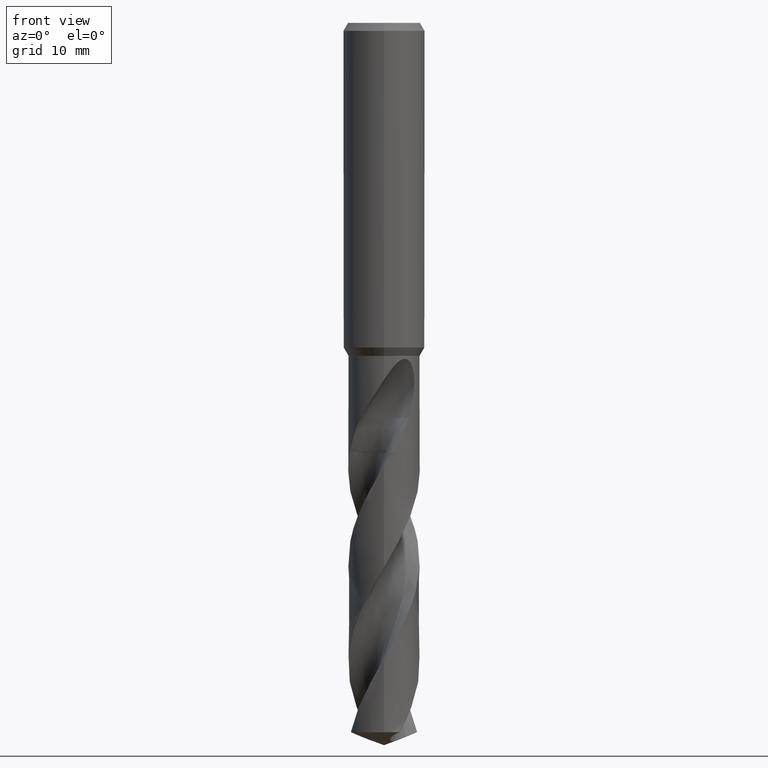
[diagram: clean part render]
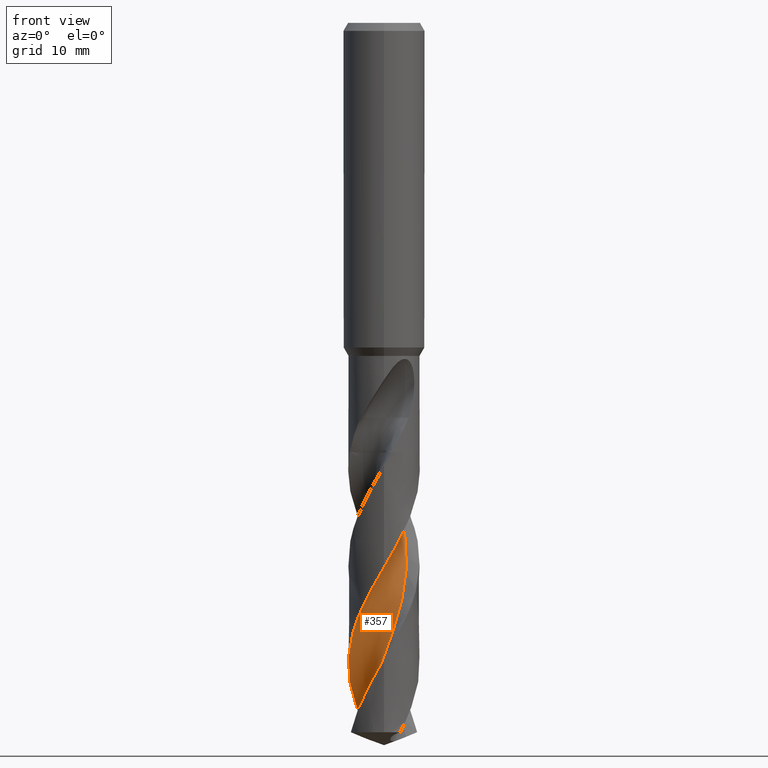
[diagram: same view with one face highlighted and labeled with its STEP entity id]
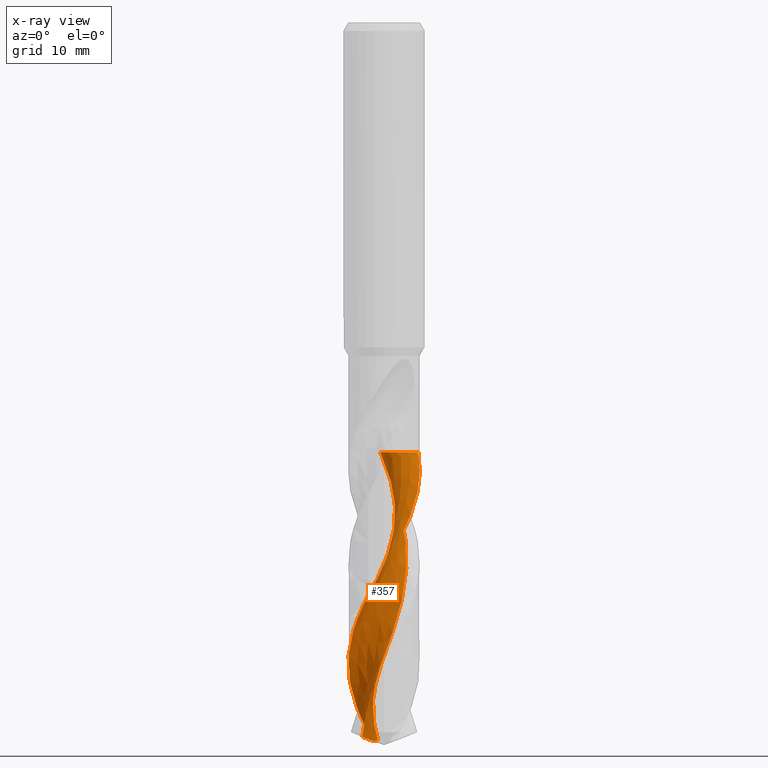
[diagram: x-ray of the same camera — body ghosted, the highlighted face saturated]
A machine part, front view. The second image highlights one B-rep face of the part: STEP entity #357.
The next image is the same camera in x-ray: the body ghosted, the highlighted face saturated — about 0% of this face is hidden behind the body in this view.
In plain terms, the highlighted face is a freeform B-spline surface patch.
Its self-contained STEP definition (entity closure, byte-faithful):
#311=VERTEX_POINT('',#875);
#315=EDGE_CURVE('',#725,#311,#879,.T.);
#357=ADVANCED_FACE('',(#925),#926,.F.);
#565=VERTEX_POINT('',#1150);
#601=EDGE_CURVE('',#565,#725,#1189,.T.);
#617=VERTEX_POINT('',#1205);
#717=EDGE_CURVE('',#311,#617,#1318,.T.);
#725=VERTEX_POINT('',#1326);
#729=EDGE_CURVE('',#735,#565,#1331,.T.);
#735=VERTEX_POINT('',#1337);
#749=EDGE_CURVE('',#617,#735,#1355,.T.);
#875=CARTESIAN_POINT('',(3.64866650938769E-013,-4.39994109378136,-67.0767508894441));
#879=B_SPLINE_CURVE_WITH_KNOTS('',3,(#1487,#1488,#1489,#1490,#1491,#1492,#1493,#1494,#1495,#1496,#1497,#1498,#1499,#1500,#1501,#1502,#1503,#1504,#1505,#1506,#1507,#1508,#1509,#1510,#1511,#1512,#1513,#1514,#1515,#1516,#1517,#1518,#1519,#1520,#1521,#1522,#1523,#1524,#1525,#1526,#1527,#1528,#1529,#1530,#1531,#1532,#1533,#1534,#1535,#1536,#1537,#1538,#1539,#1540,#1541,#1542,#1543,#1544,#1545,#1546,#1547,#1548),.UNSPECIFIED.,.F.,.F.,(4,2,2,2,2,2,2,2,2,2,2,2,2,2,2,2,2,2,2,2,2,2,2,2,2,2,2,2,2,2,4),(0.0,1.03228401256412,1.11170443907215,2.6570765577825,3.33551982576286,4.78016049357519,6.17313192762707,7.3559192498679,9.07943398398074,10.2703025248395,11.5769058035849,12.6518290053996,12.7256393721489,15.4729760146497,15.8232064727462,18.4105084814803,18.7466315738801,21.361409633339,21.5169512503077,23.8312322495048,24.8552260293923,26.3226090819265,28.3030939213299,29.8054836938122,30.6262014632625,31.9575282925406,34.0104691664888,35.4534292980273,36.5328337110177,38.1599528063868,39.7777860653442),.UNSPECIFIED.);
#925=FACE_OUTER_BOUND('',#2476,.T.);
#926=B_SPLINE_SURFACE_WITH_KNOTS('',3,3,((#2477,#2478,#2479,#2480,#2481,#2482,#2483,#2484,#2485,#2486,#2487,#2488,#2489,#2490,#2491,#2492,#2493,#2494,#2495,#2496,#2497,#2498,#2499,#2500,#2501,#2502,#2503,#2504,#2505,#2506,#2507,#2508,#2509,#2510,#2511,#2512,#2513,#2514,#2515,#2516,#2517,#2518,#2519,#2520,#2521,#2522,#2523,#2524,#2525,#2526,#2527,#2528,#2529),(#2530,#2531,#2532,#2533,#2534,#2535,#2536,#2537,#2538,#2539,#2540,#2541,#2542,#2543,#2544,#2545,#2546,#2547,#2548,#2549,#2550,#2551,#2552,#2553,#2554,#2555,#2556,#2557,#2558,#2559,#2560,#2561,#2562,#2563,#2564,#2565,#2566,#2567,#2568,#2569,#2570,#2571,#2572,#2573,#2574,#2575,#2576,#2577,#2578,#2579,#2580,#2581,#2582),(#2583,#2584,#2585,#2586,#2587,#2588,#2589,#2590,#2591,#2592,#2593,#2594,#2595,#2596,#2597,#2598,#2599,#2600,#2601,#2602,#2603,#2604,#2605,#2606,#2607,#2608,#2609,#2610,#2611,#2612,#2613,#2614,#2615,#2616,#2617,#2618,#2619,#2620,#2621,#2622,#2623,#2624,#2625,#2626,#2627,#2628,#2629,#2630,#2631,#2632,#2633,#2634,#2635),(#2636,#2637,#2638,#2639,#2640,#2641,#2642,#2643,#2644,#2645,#2646,#2647,#2648,#2649,#2650,#2651,#2652,#2653,#2654,#2655,#2656,#2657,#2658,#2659,#2660,#2661,#2662,#2663,#2664,#2665,#2666,#2667,#2668,#2669,#2670,#2671,#2672,#2673,#2674,#2675,#2676,#2677,#2678,#2679,#2680,#2681,#2682,#2683,#2684,#2685,#2686,#2687,#2688),(#2689,#2690,#2691,#2692,#2693,#2694,#2695,#2696,#2697,#2698,#2699,#2700,#2701,#2702,#2703,#2704,#2705,#2706,#2707,#2708,#2709,#2710,#2711,#2712,#2713,#2714,#2715,#2716,#2717,#2718,#2719,#2720,#2721,#2722,#2723,#2724,#2725,#2726,#2727,#2728,#2729,#2730,#2731,#2732,#2733,#2734,#2735,#2736,#2737,#2738,#2739,#2740,#2741),(#2742,#2743,#2744,#2745,#2746,#2747,#2748,#2749,#2750,#2751,#2752,#2753,#2754,#2755,#2756,#2757,#2758,#2759,#2760,#2761,#2762,#2763,#2764,#2765,#2766,#2767,#2768,#2769,#2770,#2771,#2772,#2773,#2774,#2775,#2776,#2777,#2778,#2779,#2780,#2781,#2782,#2783,#2784,#2785,#2786,#2787,#2788,#2789,#2790,#2791,#2792,#2793,#2794),(#2795,#2796,#2797,#2798,#2799,#2800,#2801,#2802,#2803,#2804,#2805,#2806,#2807,#2808,#2809,#2810,#2811,#2812,#2813,#2814,#2815,#2816,#2817,#2818,#2819,#2820,#2821,#2822,#2823,#2824,#2825,#2826,#2827,#2828,#2829,#2830,#2831,#2832,#2833,#2834,#2835,#2836,#2837,#2838,#2839,#2840,#2841,#2842,#2843,#2844,#2845,#2846,#2847),(#2848,#2849,#2850,#2851,#2852,#2853,#2854,#2855,#2856,#2857,#2858,#2859,#2860,#2861,#2862,#2863,#2864,#2865,#2866,#2867,#2868,#2869,#2870,#2871,#2872,#2873,#2874,#2875,#2876,#2877,#2878,#2879,#2880,#2881,#2882,#2883,#2884,#2885,#2886,#2887,#2888,#2889,#2890,#2891,#2892,#2893,#2894,#2895,#2896,#2897,#2898,#2899,#2900),(#2901,#2902,#2903,#2904,#2905,#2906,#2907,#2908,#2909,#2910,#2911,#2912,#2913,#2914,#2915,#2916,#2917,#2918,#2919,#2920,#2921,#2922,#2923,#2924,#2925,#2926,#2927,#2928,#2929,#2930,#2931,#2932,#2933,#2934,#2935,#2936,#2937,#2938,#2939,#2940,#2941,#2942,#2943,#2944,#2945,#2946,#2947,#2948,#2949,#2950,#2951,#2952,#2953),(#2954,#2955,#2956,#2957,#2958,#2959,#2960,#2961,#2962,#2963,#2964,#2965,#2966,#2967,#2968,#2969,#2970,#2971,#2972,#2973,#2974,#2975,#2976,#2977,#2978,#2979,#2980,#2981,#2982,#2983,#2984,#2985,#2986,#2987,#2988,#2989,#2990,#2991,#2992,#2993,#2994,#2995,#2996,#2997,#2998,#2999,#3000,#3001,#3002,#3003,#3004,#3005,#3006),(#3007,#3008,#3009,#3010,#3011,#3012,#3013,#3014,#3015,#3016,#3017,#3018,#3019,#3020,#3021,#3022,#3023,#3024,#3025,#3026,#3027,#3028,#3029,#3030,#3031,#3032,#3033,#3034,#3035,#3036,#3037,#3038,#3039,#3040,#3041,#3042,#3043,#3044,#3045,#3046,#3047,#3048,#3049,#3050,#3051,#3052,#3053,#3054,#3055,#3056,#3057,#3058,#3059)),.UNSPECIFIED.,.F.,.F.,.F.,(4,1,1,1,1,1,1,1,4),(4,1,2,2,2,2,1,2,1,2,1,2,1,2,1,2,1,2,1,2,1,2,1,2,1,2,1,2,1,2,1,2,1,4),(3.46308721244757E-017,0.392701146002746,0.785402292005493,1.17810343800824,1.57080458401099,1.96350573001373,2.35620687601648,2.74890802201922,3.14160916802197),(0.0,0.81133077329594,1.62266154659188,3.24532309318376,4.86798463977564,6.49064618636752,8.1133077329594,9.73596927955128,11.3586308261432,12.981292372735,14.6039539193269,16.2266154659188,17.8492770125107,19.4719385591026,21.0946001056944,22.7172616522863,24.3399231988782,25.9625847454701,27.585246292062,29.2079078386538,30.8305693852457,32.4532309318376,34.0758924784295,35.6985540250214,37.3212155716132,38.9438771182051,40.566538664797,42.1892002113889,43.8118617579808,45.4345233045726,47.0571848511645,48.6798463977564,50.3025079443483,51.9251694909401),.UNSPECIFIED.);
#1150=CARTESIAN_POINT('',(-2.67709469848093,-0.712319486324731,-87.9917147423264));
#1189=B_SPLINE_CURVE_WITH_KNOTS('',3,(#5320,#5321,#5322,#5323,#5324,#5325,#5326,#5327,#5328,#5329,#5330,#5331,#5332,#5333,#5334,#5335,#5336,#5337,#5338,#5339),.UNSPECIFIED.,.F.,.F.,(4,2,2,2,2,2,2,2,2,4),(0.0,1.83125859256864,3.07777585283208,4.26415405684286,5.59452050750894,7.03864488996546,8.6705030000871,10.4947934989979,11.5945860376614,12.6939633731758),.UNSPECIFIED.);
#1205=CARTESIAN_POINT('',(4.20948457580136,1.28037485723351,-52.905));
#1318=B_SPLINE_CURVE_WITH_KNOTS('',3,(#6266,#6267,#6268,#6269,#6270,#6271,#6272,#6273,#6274,#6275,#6276,#6277,#6278,#6279,#6280,#6281,#6282,#6283,#6284,#6285,#6286,#6287,#6288,#6289,#6290,#6291,#6292,#6293,#6294,#6295,#6296,#6297,#6298,#6299,#6300,#6301,#6302,#6303,#6304,#6305,#6306,#6307,#6308,#6309,#6310,#6311,#6312,#6313,#6314,#6315,#6316,#6317,#6318,#6319,#6320,#6321,#6322,#6323,#6324,#6325,#6326,#6327),.UNSPECIFIED.,.F.,.F.,(4,2,2,2,2,2,2,2,2,2,2,2,2,2,2,2,2,2,2,2,2,2,2,2,2,2,2,2,2,2,4),(0.0,1.03228401256412,1.11170443907215,2.6570765577825,3.33551982576286,4.78016049357519,6.17313192762707,7.3559192498679,9.07943398398074,10.2703025248395,11.5769058035849,12.6518290053996,12.7256393721489,15.4729760146497,15.8232064727462,18.4105084814803,18.7466315738801,21.361409633339,21.5169512503077,23.8312322495048,24.8552260293923,26.3226090819265,28.3030939213299,29.8054836938122,30.6262014632625,31.9575282925406,34.0104691664888,35.4534292980273,36.5328337110177,38.1599528063868,39.7777860653442),.UNSPECIFIED.);
#1326=CARTESIAN_POINT('',(-1.97377628759235,3.93245561532971,-87.3985309692287));
#1331=B_SPLINE_CURVE_WITH_KNOTS('',3,(#6407,#6408,#6409,#6410,#6411,#6412,#6413,#6414,#6415,#6416,#6417,#6418,#6419,#6420,#6421,#6422,#6423,#6424,#6425,#6426,#6427,#6428,#6429,#6430,#6431,#6432,#6433,#6434,#6435,#6436,#6437,#6438,#6439,#6440,#6441,#6442,#6443,#6444,#6445,#6446,#6447,#6448,#6449,#6450,#6451,#6452,#6453,#6454,#6455,#6456,#6457,#6458,#6459),.UNSPECIFIED.,.F.,.F.,(4,1,2,2,2,2,1,2,1,2,1,2,1,2,1,2,1,2,1,2,1,2,1,2,1,2,1,2,1,2,1,2,1,4),(0.0,0.81133077329594,1.62266154659188,3.24532309318376,4.86798463977564,6.49064618636752,8.1133077329594,9.73596927955128,11.3586308261432,12.981292372735,14.6039539193269,16.2266154659188,17.8492770125107,19.4719385591026,21.0946001056944,22.7172616522863,24.3399231988782,25.9625847454701,27.585246292062,29.2079078386538,30.8305693852457,32.4532309318376,34.0758924784295,35.6985540250214,37.3212155716132,38.9438771182051,40.566538664797,42.1892002113889,43.8118617579808,45.4345233045726,47.0571848511645,48.6798463977564,50.3025079443483,51.9251694909401),.UNSPECIFIED.);
#1337=CARTESIAN_POINT('',(-0.46325737452394,2.727613263734,-52.905));
#1355=B_SPLINE_CURVE_WITH_KNOTS('',3,(#7703,#7704,#7705,#7706,#7707,#7708,#7709,#7710,#7711,#7712,#7713,#7714,#7715,#7716,#7717,#7718,#7719,#7720,#7721,#7722),.UNSPECIFIED.,.F.,.F.,(4,2,2,2,2,2,2,2,2,4),(-9.24043989421472,-8.6292720878309,-8.01799155180672,-6.87157295688713,-5.72528354428492,-4.57958945393011,-3.43461073605728,-2.29004599967977,-1.14533986027862,-0.0),.UNSPECIFIED.);
#1487=CARTESIAN_POINT('',(-1.97377628759236,3.9324556153297,-87.3985309692287));
#1488=CARTESIAN_POINT('',(-2.12840702944348,3.85484246086082,-87.1010974902144));
#1489=CARTESIAN_POINT('',(-2.27773428382111,3.7684742935761,-86.804104254046));
#1490=CARTESIAN_POINT('',(-2.43214943396323,3.66671519448329,-86.4829510616009));
#1491=CARTESIAN_POINT('',(-2.44314386397495,3.6593988799077,-86.4600072439954));
#1492=CARTESIAN_POINT('',(-2.6684386685473,3.50799829551078,-85.9887058988716));
#1493=CARTESIAN_POINT('',(-2.87019625254471,3.3450459586682,-85.5432149097253));
#1494=CARTESIAN_POINT('',(-3.13890998318335,3.08547758711192,-84.8995747972068));
#1495=CARTESIAN_POINT('',(-3.21774855988626,3.00316432158052,-84.7034204633502));
#1496=CARTESIAN_POINT('',(-3.45409609931409,2.73641104171942,-84.0887733731318));
#1497=CARTESIAN_POINT('',(-3.59958654748022,2.54199518739687,-83.6691621881111));
#1498=CARTESIAN_POINT('',(-3.85262779362171,2.13819223183728,-82.8476639959897));
#1499=CARTESIAN_POINT('',(-3.96081207992608,1.93042076242893,-82.4462328087717));
#1500=CARTESIAN_POINT('',(-4.12935685562874,1.53221815064341,-81.7005310545979));
#1501=CARTESIAN_POINT('',(-4.19418291953997,1.34460040515827,-81.3568766376648));
#1502=CARTESIAN_POINT('',(-4.32182485575195,0.874669874743244,-80.5157000121113));
#1503=CARTESIAN_POINT('',(-4.36993931181667,0.589087032573696,-80.0204835176623));
#1504=CARTESIAN_POINT('',(-4.40334169106126,0.101367499745814,-79.1775184173043));
#1505=CARTESIAN_POINT('',(-4.4033926266747,-0.0983476456329286,-78.8318635572945));
#1506=CARTESIAN_POINT('',(-4.37513731712207,-0.515555121586742,-78.1096485883724));
#1507=CARTESIAN_POINT('',(-4.34408420806136,-0.73262620348091,-77.733408488444));
#1508=CARTESIAN_POINT('',(-4.25811204574327,-1.12282771052781,-77.0452891509365));
#1509=CARTESIAN_POINT('',(-4.20860054482014,-1.29601453403227,-76.7353895617997));
#1510=CARTESIAN_POINT('',(-4.14469184015251,-1.47695670350017,-76.4029856853653));
#1511=CARTESIAN_POINT('',(-4.14054135570389,-1.48855251803388,-76.3816431417916));
#1512=CARTESIAN_POINT('',(-3.97969686467546,-1.93203718987973,-75.5645217281553));
#1513=CARTESIAN_POINT('',(-3.75647597669801,-2.33657200925716,-74.7829364472992));
#1514=CARTESIAN_POINT('',(-3.43874394876331,-2.74556449897831,-73.8865375884342));
#1515=CARTESIAN_POINT('',(-3.40193104866223,-2.79104937372995,-73.7851068263901));
#1516=CARTESIAN_POINT('',(-3.08492348945748,-3.16710326850473,-72.9341606663861));
#1517=CARTESIAN_POINT('',(-2.7585393487684,-3.45505236416551,-72.1965543809211));
#1518=CARTESIAN_POINT('',(-2.34834477283354,-3.72129396975032,-71.3500199819701));
#1519=CARTESIAN_POINT('',(-2.30062135952552,-3.75098716996583,-71.2526062398938));
#1520=CARTESIAN_POINT('',(-1.87563953310395,-4.00420989046881,-70.3967876343832));
#1521=CARTESIAN_POINT('',(-1.46797785216125,-4.17088382037164,-69.6507338288499));
#1522=CARTESIAN_POINT('',(-1.01732824506333,-4.2807999624131,-68.8475156191741));
#1523=CARTESIAN_POINT('',(-0.992004750066278,-4.28673897519618,-68.8024362321065));
#1524=CARTESIAN_POINT('',(-0.5884007119606,-4.37762137688431,-68.0860665422772));
#1525=CARTESIAN_POINT('',(-0.200362098061824,-4.41250365272719,-67.4233985521935));
#1526=CARTESIAN_POINT('',(0.359360770831848,-4.38860539144447,-66.4564040787564));
#1527=CARTESIAN_POINT('',(0.530263852707363,-4.3712437005039,-66.1588234541412));
#1528=CARTESIAN_POINT('',(0.942776776915076,-4.30478517031047,-65.4372206686796));
#1529=CARTESIAN_POINT('',(1.18220507828403,-4.24530084077266,-65.0144630520602));
#1530=CARTESIAN_POINT('',(1.73058872237528,-4.0589586970357,-64.0165471836872));
#1531=CARTESIAN_POINT('',(2.03226713600433,-3.91662504587404,-63.4413684178234));
#1532=CARTESIAN_POINT('',(2.52976805258834,-3.6087844840702,-62.4333198346582));
#1533=CARTESIAN_POINT('',(2.7323322529748,-3.45790889542763,-62.0007409397414));
#1534=CARTESIAN_POINT('',(3.02357190927097,-3.19941773588694,-61.3279463778294));
#1535=CARTESIAN_POINT('',(3.12203653444405,-3.1034113586854,-61.0896509942346));
#1536=CARTESIAN_POINT('',(3.36834978671402,-2.83960995922205,-60.4662428384795));
#1537=CARTESIAN_POINT('',(3.50822638120745,-2.66490180156795,-60.0822751414715));
#1538=CARTESIAN_POINT('',(3.82878541430183,-2.19515224369319,-59.1027139807571));
#1539=CARTESIAN_POINT('',(3.98895021661847,-1.88851305240738,-58.5064566524335));
#1540=CARTESIAN_POINT('',(4.19800226987385,-1.3396923424681,-57.4943879129965));
#1541=CARTESIAN_POINT('',(4.26538489196317,-1.10651279600915,-57.0787325666866));
#1542=CARTESIAN_POINT('',(4.34900522372172,-0.691507028320046,-56.3483601551759));
#1543=CARTESIAN_POINT('',(4.37375438603216,-0.512082161696111,-56.0348355965553));
#1544=CARTESIAN_POINT('',(4.40795453084353,-0.0595665612304247,-55.2511876506519));
#1545=CARTESIAN_POINT('',(4.40316678049305,0.213648241257652,-54.7836685686035));
#1546=CARTESIAN_POINT('',(4.34326118572698,0.754145441467063,-53.8452529315873));
#1547=CARTESIAN_POINT('',(4.28867937269372,1.02003464048914,-53.3724454732735));
#1548=CARTESIAN_POINT('',(4.20945221518693,1.28048123013364,-52.9048089990097));
#2476=EDGE_LOOP('',(#8626,#8627,#8628,#8629,#8630));
#2477=CARTESIAN_POINT('',(2.07417988905281,6.3275132190528,-48.6578));
#2478=CARTESIAN_POINT('',(2.24422014580949,6.32085224822191,-48.8677598560677));
#2479=CARTESIAN_POINT('',(2.58794444365001,6.27325829861361,-49.2896972460706));
#2480=CARTESIAN_POINT('',(2.93173414019443,6.13869994022201,-49.7129344113666));
#2481=CARTESIAN_POINT('',(3.4337776033692,5.85846038714871,-50.3427186409972));
#2482=CARTESIAN_POINT('',(3.75051835553013,5.64804575187389,-50.7611407456988));
#2483=CARTESIAN_POINT('',(4.34848918605826,5.18986774445858,-51.6000439919254));
#2484=CARTESIAN_POINT('',(4.62946999037458,4.94064531245771,-52.0200380520523));
#2485=CARTESIAN_POINT('',(5.15035856618868,4.4073010679592,-52.8631227462087));
#2486=CARTESIAN_POINT('',(5.3877770396745,4.1169312500245,-53.2840455073511));
#2487=CARTESIAN_POINT('',(5.80633496706339,3.49321641665605,-54.1229588452584));
#2488=CARTESIAN_POINT('',(6.1758527763909,2.83846093301733,-54.9631656821748));
#2489=CARTESIAN_POINT('',(6.43337655286827,2.13290665511832,-55.8047030937837));
#2490=CARTESIAN_POINT('',(6.62782367557226,1.40867045076455,-56.6451189687609));
#2491=CARTESIAN_POINT('',(6.76421443263984,0.670079330413107,-57.4854123666614));
#2492=CARTESIAN_POINT('',(6.77755545491348,-0.0812359317368456,-58.3262028442182));
#2493=CARTESIAN_POINT('',(6.72507907805235,-0.829508845693614,-59.1668309990662));
#2494=CARTESIAN_POINT('',(6.61295105704973,-1.57228142112493,-60.007245539567));
#2495=CARTESIAN_POINT('',(6.38048790643981,-2.28680700207462,-60.8480226217909));
#2496=CARTESIAN_POINT('',(6.08699397194705,-2.97703132716353,-61.6886032008728));
#2497=CARTESIAN_POINT('',(5.73889991075461,-3.64265480841482,-62.5289954839559));
#2498=CARTESIAN_POINT('',(5.28616799334421,-4.24235718466363,-63.3697769884248));
#2499=CARTESIAN_POINT('',(4.7835950176738,-4.79915074296637,-64.2103617335538));
#2500=CARTESIAN_POINT('',(4.23743570639415,-5.31487138131278,-65.050753774294));
#2501=CARTESIAN_POINT('',(3.61388447157506,-5.73415571069372,-65.8915364874982));
#2502=CARTESIAN_POINT('',(2.95722609415198,-6.09663511480117,-66.7321278393396));
#2503=CARTESIAN_POINT('',(2.27276133867636,-6.40607478025934,-67.5725232587069));
#2504=CARTESIAN_POINT('',(1.54658943440538,-6.59912879164703,-68.4133043189187));
#2505=CARTESIAN_POINT('',(0.807644610327078,-6.72770241330583,-69.2538928444454));
#2506=CARTESIAN_POINT('',(0.0596989365042611,-6.79706804194778,-70.0942879380307));
#2507=CARTESIAN_POINT('',(-0.68973813604924,-6.74278961727819,-70.9350675649302));
#2508=CARTESIAN_POINT('',(-1.43022823513104,-6.62337418069687,-71.7756511707323));
#2509=CARTESIAN_POINT('',(-2.15992085394588,-6.44504940741267,-72.6160437392558));
#2510=CARTESIAN_POINT('',(-2.85070051757767,-6.1493425668025,-73.4568266529674));
#2511=CARTESIAN_POINT('',(-3.51177502181143,-5.79496885881417,-74.2974163137088));
#2512=CARTESIAN_POINT('',(-4.1434262534421,-5.38843673183559,-75.1378108120242));
#2513=CARTESIAN_POINT('',(-4.70002457674713,-4.88366418561262,-75.9785933437054));
#2514=CARTESIAN_POINT('',(-5.20942639858616,-4.33313933459598,-76.8191845789815));
#2515=CARTESIAN_POINT('',(-5.67400665615078,-3.74288907554208,-77.6595784465364));
#2516=CARTESIAN_POINT('',(-6.03559579193761,-3.08421216120806,-78.5003530282234));
#2517=CARTESIAN_POINT('',(-6.33764869507729,-2.39765818246177,-79.3409325236477));
#2518=CARTESIAN_POINT('',(-6.58439067938587,-1.68816488848011,-80.1813342875024));
#2519=CARTESIAN_POINT('',(-6.71142552579522,-0.947571692572085,-81.0221361723813));
#2520=CARTESIAN_POINT('',(-6.7730317408138,-0.200056473149013,-81.8627386225234));
#2521=CARTESIAN_POINT('',(-6.77484119612031,0.55106771199425,-82.7030956185393));
#2522=CARTESIAN_POINT('',(-6.65353868777025,1.29258251668938,-83.5438203502056));
#2523=CARTESIAN_POINT('',(-6.46834704080088,2.01942680688099,-84.3843937806214));
#2524=CARTESIAN_POINT('',(-6.22535359449348,2.7303873672477,-85.2249564819793));
#2525=CARTESIAN_POINT('',(-5.86811164614313,3.39178660982164,-86.0659385248458));
#2526=CARTESIAN_POINT('',(-5.45446919471378,4.01779511637279,-86.9065471047933));
#2527=CARTESIAN_POINT('',(-4.99265286064517,4.60949765647285,-87.7464500758046));
#2528=CARTESIAN_POINT('',(-4.4433084014417,5.11942931467139,-88.5865202797095));
#2529=CARTESIAN_POINT('',(-4.1489596138789,5.34987046198855,-89.0066180469395));
#2530=CARTESIAN_POINT('',(2.34567949490584,6.05599094595573,-48.6578000000003));
#2531=CARTESIAN_POINT('',(2.51611535402486,6.0497255444725,-48.8677710763436));
#2532=CARTESIAN_POINT('',(2.85610211210801,5.99828005119064,-49.289946859303));
#2533=CARTESIAN_POINT('',(3.18640107030027,5.85105761654677,-49.7135558482103));
#2534=CARTESIAN_POINT('',(3.6594744137747,5.54680969209475,-50.3432189092401));
#2535=CARTESIAN_POINT('',(3.95665992334364,5.3233475606734,-50.7613954826197));
#2536=CARTESIAN_POINT('',(4.51608011920315,4.84369377275411,-51.6000753169183));
#2537=CARTESIAN_POINT('',(4.77782888500194,4.58590313526751,-52.0200238019364));
#2538=CARTESIAN_POINT('',(5.26030731148172,4.03884024004488,-52.8634526411423));
#2539=CARTESIAN_POINT('',(5.47737002671633,3.74292265888834,-53.2844638569697));
#2540=CARTESIAN_POINT('',(5.85312115461901,3.11148306899433,-54.1231452620166));
#2541=CARTESIAN_POINT('',(6.18027627649653,2.4527819194424,-54.9632986018658));
#2542=CARTESIAN_POINT('',(6.39550986389157,1.75020314477784,-55.8049681417772));
#2543=CARTESIAN_POINT('',(6.54759657076962,1.03255967379776,-56.6453601958749));
#2544=CARTESIAN_POINT('',(6.6427631001741,0.303990630145943,-57.4856127019163));
#2545=CARTESIAN_POINT('',(6.61703790896494,-0.430708574373619,-58.3264313274264));
#2546=CARTESIAN_POINT('',(6.52661689608004,-1.15891679937234,-59.167065066472));
#2547=CARTESIAN_POINT('',(6.37874677362948,-1.87874772296578,-60.0074555468742));
#2548=CARTESIAN_POINT('',(6.11477037972259,-2.56481901990625,-60.848258944784));
#2549=CARTESIAN_POINT('',(5.79196613595339,-3.22371916524554,-61.6888385428582));
#2550=CARTESIAN_POINT('',(5.41757441364095,-3.85601507465907,-62.5292036614172));
#2551=CARTESIAN_POINT('',(4.94432678298342,-4.41854270037202,-63.3700120841769));
#2552=CARTESIAN_POINT('',(4.42425368630782,-4.93615581705889,-64.2105964268412));
#2553=CARTESIAN_POINT('',(3.86409895564899,-5.41178704810655,-65.0509612466448));
#2554=CARTESIAN_POINT('',(3.23327614546557,-5.78923755029265,-65.8917711005508));
#2555=CARTESIAN_POINT('',(2.57285089339529,-6.1089736437203,-66.732362905165));
#2556=CARTESIAN_POINT('',(1.88822847795392,-6.37595372134316,-67.5727316358041));
#2557=CARTESIAN_POINT('',(1.16882303118608,-6.52709309605072,-68.4135395554851));
#2558=CARTESIAN_POINT('',(0.440253259711529,-6.61403613388578,-69.2541281816279));
#2559=CARTESIAN_POINT('',(-0.293998205560413,-6.64321390859501,-70.0944965043149));
#2560=CARTESIAN_POINT('',(-1.02337138263018,-6.55151617395876,-70.935302793183));
#2561=CARTESIAN_POINT('',(-1.74047723246663,-6.39612527309111,-71.7758858455961));
#2562=CARTESIAN_POINT('',(-2.44411809888405,-6.18427197098878,-72.616251310914));
#2563=CARTESIAN_POINT('',(-3.10372650939141,-5.85973144935975,-73.4570613282881));
#2564=CARTESIAN_POINT('',(-3.73096084466968,-5.47897176575848,-74.2976512405699));
#2565=CARTESIAN_POINT('',(-4.32704982716028,-5.04923883874489,-75.1380187779535));
#2566=CARTESIAN_POINT('',(-4.84478270350925,-4.52737542696163,-75.9788284397531));
#2567=CARTESIAN_POINT('',(-5.31359724321988,-3.96294363462644,-76.8194202787263));
#2568=CARTESIAN_POINT('',(-5.73699753309633,-3.36235662271321,-77.6597875244035));
#2569=CARTESIAN_POINT('',(-6.05627089697803,-2.70019498194314,-78.5005879930294));
#2570=CARTESIAN_POINT('',(-6.31541746608041,-2.01372817453545,-79.3411657779787));
#2571=CARTESIAN_POINT('',(-6.51985978320662,-1.30789055100922,-80.1815406278719));
#2572=CARTESIAN_POINT('',(-6.60575192815523,-0.577801561513278,-81.0223725625558));
#2573=CARTESIAN_POINT('',(-6.62681628924841,0.155636835612561,-81.8629791379611));
#2574=CARTESIAN_POINT('',(-6.58982196253682,0.889506261459179,-82.70330803917));
#2575=CARTESIAN_POINT('',(-6.43306936249073,1.6076842327335,-83.5440499212023));
#2576=CARTESIAN_POINT('',(-6.21417847838446,2.30803379380404,-84.3846120826065));
#2577=CARTESIAN_POINT('',(-5.94013349882347,2.9900509315179,-85.2251542808064));
#2578=CARTESIAN_POINT('',(-5.55689908685393,3.61772448392268,-86.0661884986556));
#2579=CARTESIAN_POINT('',(-5.11992141769899,4.20747586378268,-86.9068192141615));
#2580=CARTESIAN_POINT('',(-4.6382572537888,4.76167372445047,-87.7466681294985));
#2581=CARTESIAN_POINT('',(-4.07558085036342,5.23192133169599,-88.5867351397004));
#2582=CARTESIAN_POINT('',(-3.77619131820462,5.44195807211733,-89.0068429182398));
#2583=CARTESIAN_POINT('',(2.78058981884328,5.40509524997723,-48.6577999999998));
#2584=CARTESIAN_POINT('',(2.95197401941634,5.39946350443695,-48.8677895314967));
#2585=CARTESIAN_POINT('',(3.28295564178816,5.341802855539,-49.2903573926269));
#2586=CARTESIAN_POINT('',(3.58124297943641,5.17462206174094,-49.7145779099128));
#2587=CARTESIAN_POINT('',(3.98684093205538,4.83388795182089,-50.344041692205));
#2588=CARTESIAN_POINT('',(4.23973558409186,4.59211290909881,-50.7618144497861));
#2589=CARTESIAN_POINT('',(4.71353060258986,4.08484681881429,-51.6001268293561));
#2590=CARTESIAN_POINT('',(4.93341614429395,3.81757130532436,-52.0200003485308));
#2591=CARTESIAN_POINT('',(5.33363501556108,3.2583510804343,-52.8639952284842));
#2592=CARTESIAN_POINT('',(5.50778867104061,2.95943498541128,-53.2851519048669));
#2593=CARTESIAN_POINT('',(5.79487235029426,2.32957198160683,-54.1234518597922));
#2594=CARTESIAN_POINT('',(6.035750912597,1.67982725497623,-54.9635172185532));
#2595=CARTESIAN_POINT('',(6.16760514168604,1.00001546744589,-55.8054040446234));
#2596=CARTESIAN_POINT('',(6.23761057789695,0.312399884388696,-56.6457569523223));
#2597=CARTESIAN_POINT('',(6.25433140769238,-0.379735822214185,-57.4859421921034));
#2598=CARTESIAN_POINT('',(6.15709784902961,-1.0656747196143,-58.3268070864141));
#2599=CARTESIAN_POINT('',(5.99878253168109,-1.73867280159567,-59.1674500540798));
#2600=CARTESIAN_POINT('',(5.78856632735622,-2.3984167557985,-60.0078009207087));
#2601=CARTESIAN_POINT('',(5.47289194457187,-3.01505978421463,-60.8486476386409));
#2602=CARTESIAN_POINT('',(5.10393590682268,-3.59966913590207,-61.6892255858002));
#2603=CARTESIAN_POINT('',(4.6902131154187,-4.15486628496454,-62.5295460419323));
#2604=CARTESIAN_POINT('',(4.19072572412401,-4.63490173741661,-63.3703987681557));
#2605=CARTESIAN_POINT('',(3.65124040184635,-5.06721128376878,-64.210982394337));
#2606=CARTESIAN_POINT('',(3.07904282604885,-5.4571151237976,-65.0513025209781));
#2607=CARTESIAN_POINT('',(2.45031571772626,-5.74802395149849,-65.8921568922167));
#2608=CARTESIAN_POINT('',(1.79935575251539,-5.98079345914801,-66.7327495837898));
#2609=CARTESIAN_POINT('',(1.13130273647154,-6.16280956136643,-67.5730743174217));
#2610=CARTESIAN_POINT('',(0.442095268456283,-6.23282806506516,-68.4139264356662));
#2611=CARTESIAN_POINT('',(-0.24917379686611,-6.24065326634381,-69.2545152434975));
#2612=CARTESIAN_POINT('',(-0.940061348321097,-6.19491793334933,-70.0948395227587));
#2613=CARTESIAN_POINT('',(-1.61443490909323,-6.0363760190465,-70.935689671368));
#2614=CARTESIAN_POINT('',(-2.27047595214997,-5.818348399758,-71.7762718064996));
#2615=CARTESIAN_POINT('',(-2.90869121629702,-5.54981201459591,-72.6165926793693));
#2616=CARTESIAN_POINT('',(-3.49450413705254,-5.18001190510903,-73.4574473370854));
#2617=CARTESIAN_POINT('',(-4.04357964704922,-4.75994842679847,-74.2980375759449));
#2618=CARTESIAN_POINT('',(-4.55933298805624,-4.29796545921242,-75.1383608678501));
#2619=CARTESIAN_POINT('',(-4.99255490754633,-3.75738289512526,-75.9792150345039));
#2620=CARTESIAN_POINT('',(-5.3746817127671,-3.18128315177647,-76.8198079912216));
#2621=CARTESIAN_POINT('',(-5.71162884317153,-2.57640277276336,-77.6601313556431));
#2622=CARTESIAN_POINT('',(-5.94490272159098,-1.92410060239142,-78.5009744408158));
#2623=CARTESIAN_POINT('',(-6.11828937743718,-1.25487035622917,-79.3415493996883));
#2624=CARTESIAN_POINT('',(-6.23960389299765,-0.573163607732786,-80.1818800097481));
#2625=CARTESIAN_POINT('',(-6.24740507711232,0.119560448401595,-81.0227613176413));
#2626=CARTESIAN_POINT('',(-6.19300067428462,0.80872911958463,-81.8633747388289));
#2627=CARTESIAN_POINT('',(-6.08527669704491,1.49266542052468,-82.7036573164043));
#2628=CARTESIAN_POINT('',(-5.86691904761612,2.15008234936986,-83.5444276333317));
#2629=CARTESIAN_POINT('',(-5.59117988323256,2.78405264228295,-84.3849709771545));
#2630=CARTESIAN_POINT('',(-5.26655466052128,3.3958470433563,-85.225479666661));
#2631=CARTESIAN_POINT('',(-4.84475772659687,3.9457472023369,-86.0665996256839));
#2632=CARTESIAN_POINT('',(-4.3755375834227,4.45371998930731,-86.9072667456355));
#2633=CARTESIAN_POINT('',(-3.86910037539365,4.92503154492667,-87.7470267381735));
#2634=CARTESIAN_POINT('',(-3.29554662909553,5.31062611960036,-88.5870885544445));
#2635=CARTESIAN_POINT('',(-2.9941917998615,5.47785812001094,-89.0072127590027));
#2636=CARTESIAN_POINT('',(3.00969808470155,4.25333597591013,-48.6577999999999));
#2637=CARTESIAN_POINT('',(3.18276037569447,4.24803803641954,-48.8678010516877));
#2638=CARTESIAN_POINT('',(3.49769360521935,4.18693309690407,-49.2906136716181));
#2639=CARTESIAN_POINT('',(3.74015863879708,4.01046689441498,-49.715215941376));
#2640=CARTESIAN_POINT('',(4.03129489423815,3.65790001460571,-50.3445553204299));
#2641=CARTESIAN_POINT('',(4.21229246150303,3.41617016652826,-50.7620759896572));
#2642=CARTESIAN_POINT('',(4.55156570261133,2.91978879114369,-51.6001589904542));
#2643=CARTESIAN_POINT('',(4.70798676512473,2.66339959750632,-52.0199857147468));
#2644=CARTESIAN_POINT('',(4.98722060950552,2.13455117477265,-52.8643339361294));
#2645=CARTESIAN_POINT('',(5.10018389049606,1.85611116672307,-53.2855814309827));
#2646=CARTESIAN_POINT('',(5.26528534312226,1.27933334263494,-54.1236432498602));
#2647=CARTESIAN_POINT('',(5.39173183066114,0.691528914424635,-54.9636536931142));
#2648=CARTESIAN_POINT('',(5.42109728584494,0.0911346336008155,-55.8056761646029));
#2649=CARTESIAN_POINT('',(5.39458112748816,-0.507745300479955,-56.6460046271235));
#2650=CARTESIAN_POINT('',(5.32349611655595,-1.10435483969572,-57.4861478724314));
#2651=CARTESIAN_POINT('',(5.15514771562846,-1.68166567202806,-58.3270416746221));
#2652=CARTESIAN_POINT('',(4.93442891833075,-2.2391712992709,-59.1676903685335));
#2653=CARTESIAN_POINT('',(4.67229831845648,-2.77984876106752,-60.0080165454607));
#2654=CARTESIAN_POINT('',(4.32482940588385,-3.27059152454436,-60.8488902572595));
#2655=CARTESIAN_POINT('',(3.9345568982416,-3.72574522047576,-61.6894672275938));
#2656=CARTESIAN_POINT('',(3.51058261649314,-4.1515105315813,-62.5297597683826));
#2657=CARTESIAN_POINT('',(3.02208349109576,-4.5021543319933,-63.3706401472106));
#2658=CARTESIAN_POINT('',(2.50466284144948,-4.80509521021619,-64.2112233496658));
#2659=CARTESIAN_POINT('',(1.96498675086776,-5.06927335333622,-65.0515155495689));
#2660=CARTESIAN_POINT('',(1.38884356798988,-5.24144424422666,-65.8923977439825));
#2661=CARTESIAN_POINT('',(0.800925258182465,-5.35911745251498,-66.7329909532968));
#2662=CARTESIAN_POINT('',(0.204610131997425,-5.43289084462206,-67.5732882488529));
#2663=CARTESIAN_POINT('',(-0.396177343609097,-5.40781647318087,-68.4141679480276));
#2664=CARTESIAN_POINT('',(-0.990332324906925,-5.3274021819404,-69.2547568711751));
#2665=CARTESIAN_POINT('',(-1.5781163009928,-5.20273546673775,-70.0950536525618));
#2666=CARTESIAN_POINT('',(-2.13789201112819,-4.98312462695639,-70.9359311873533));
#2667=CARTESIAN_POINT('',(-2.6733445584857,-4.71334110930051,-71.776512742022));
#2668=CARTESIAN_POINT('',(-3.18834519471339,-4.40380349102231,-72.6168058061298));
#2669=CARTESIAN_POINT('',(-3.64590114575376,-4.01363910444797,-73.4576882612525));
#2670=CARTESIAN_POINT('',(-4.06409129107827,-3.58397042662073,-74.2982787943118));
#2671=CARTESIAN_POINT('',(-4.44999155511133,-3.12340798753972,-75.1385743777004));
#2672=CARTESIAN_POINT('',(-4.75534118804824,-2.60539560717673,-75.9794564099205));
#2673=CARTESIAN_POINT('',(-5.01062653352874,-2.06288818792029,-76.8200499838231));
#2674=CARTESIAN_POINT('',(-5.22529074293116,-1.50168617375447,-77.6603460146262));
#2675=CARTESIAN_POINT('',(-5.34503493930695,-0.912416733774398,-78.5012156857796));
#2676=CARTESIAN_POINT('',(-5.4094587524378,-0.31630594854429,-79.3417888772832));
#2677=CARTESIAN_POINT('',(-5.42941607995751,0.284237288183393,-80.1820918702428));
#2678=CARTESIAN_POINT('',(-5.35043784774529,0.880347763239657,-81.0230040061037));
#2679=CARTESIAN_POINT('',(-5.21685189410655,1.46483850760415,-81.8636216913595));
#2680=CARTESIAN_POINT('',(-5.03976560595759,2.03896827031609,-82.7038753978941));
#2681=CARTESIAN_POINT('',(-4.77090748910807,2.57680993393639,-83.5446633438526));
#2682=CARTESIAN_POINT('',(-4.45448558849567,3.08614907830149,-84.3851950997102));
#2683=CARTESIAN_POINT('',(-4.10007108695745,3.57158373028264,-85.2256827514275));
#2684=CARTESIAN_POINT('',(-3.6694750378703,3.99155826378053,-86.0668562761425));
#2685=CARTESIAN_POINT('',(-3.20251415008839,4.36768255209408,-86.9075461201761));
#2686=CARTESIAN_POINT('',(-2.70932431695188,4.70989812551085,-87.7472506085475));
#2687=CARTESIAN_POINT('',(-2.16929057570207,4.97192508253353,-88.5873091659159));
#2688=CARTESIAN_POINT('',(-1.88978414164868,5.0787043976654,-89.0074436353102));
#2689=CARTESIAN_POINT('',(2.78060495241231,3.10157369157412,-48.6578));
#2690=CARTESIAN_POINT('',(2.95534533612321,3.09594196859364,-48.8677946538177));
#2691=CARTESIAN_POINT('',(3.25413364354836,3.03779645459821,-49.290471353707));
#2692=CARTESIAN_POINT('',(3.44147330541484,2.87411360635952,-49.714861628703));
#2693=CARTESIAN_POINT('',(3.62233220739064,2.55441755578605,-50.3442700888777));
#2694=CARTESIAN_POINT('',(3.73692242104474,2.34024366326503,-50.7619307486337));
#2695=CARTESIAN_POINT('',(3.95607911601991,1.90539805790225,-51.600141132534));
#2696=CARTESIAN_POINT('',(4.05803271382804,1.6833534676301,-52.0199938440774));
#2697=CARTESIAN_POINT('',(4.23711410282369,1.22886389477116,-52.8641458410876));
#2698=CARTESIAN_POINT('',(4.30138093172395,0.992757787358977,-53.2853429106197));
#2699=CARTESIAN_POINT('',(4.3741002558426,0.511705306768863,-54.1235369611044));
#2700=CARTESIAN_POINT('',(4.41852904372312,0.0249177162212829,-54.9635779045258));
#2701=CARTESIAN_POINT('',(4.38359924259834,-0.462883618606772,-55.8055250577207));
#2702=CARTESIAN_POINT('',(4.30186664473456,-0.942845141462273,-56.6458670799396));
#2703=CARTESIAN_POINT('',(4.18621611893465,-1.41759803629293,-57.4860336593006));
#2704=CARTESIAN_POINT('',(3.99373658450714,-1.86733513482121,-58.3269113981714));
#2705=CARTESIAN_POINT('',(3.75956179471859,-2.29425884765275,-59.16755692055));
#2706=CARTESIAN_POINT('',(3.49503357230128,-2.70506639834011,-60.0078968015873));
#2707=CARTESIAN_POINT('',(3.16637054371835,-3.0673253138703,-60.8487555262579));
#2708=CARTESIAN_POINT('',(2.8059449553251,-3.39472016999903,-61.6893330375849));
#2709=CARTESIAN_POINT('',(2.42203121779441,-3.69698302189798,-62.5296410849994));
#2710=CARTESIAN_POINT('',(1.99320017224586,-3.93228971320235,-63.3705060968497));
#2711=CARTESIAN_POINT('',(1.54567208452222,-4.12415341767513,-64.2110895485867));
#2712=CARTESIAN_POINT('',(1.08415529429026,-4.2846217394215,-65.0513972428605));
#2713=CARTESIAN_POINT('',(0.60203252282797,-4.36721628771979,-65.8922640004391));
#2714=CARTESIAN_POINT('',(0.116402704437356,-4.40267955733234,-66.7328569082132));
#2715=CARTESIAN_POINT('',(-0.372212380999286,-4.4039028325349,-67.5731694512947));
#2716=CARTESIAN_POINT('',(-0.854919894399934,-4.32481120937574,-68.4140338306124));
#2717=CARTESIAN_POINT('',(-1.32558528235809,-4.20003843754152,-69.2546226897509));
#2718=CARTESIAN_POINT('',(-1.78790814369736,-4.04190490935361,-70.0949347259339));
#2719=CARTESIAN_POINT('',(-2.2184391831555,-3.8097286926665,-70.9357970987046));
#2720=CARTESIAN_POINT('',(-2.62267636109785,-3.5382764272245,-71.7763789141942));
#2721=CARTESIAN_POINT('',(-3.00815101241673,-3.2380110702005,-72.6166874679682));
#2722=CARTESIAN_POINT('',(-3.33941999227876,-2.87811459667188,-73.457554469123));
#2723=CARTESIAN_POINT('',(-3.63301215697028,-2.48965977411855,-74.298144841535));
#2724=CARTESIAN_POINT('',(-3.89948750862594,-2.08010260124395,-75.1384558121615));
#2725=CARTESIAN_POINT('',(-4.09533593027034,-1.63187716042518,-75.979322364361));
#2726=CARTESIAN_POINT('',(-4.24629045316269,-1.16894531728723,-76.8199156039407));
#2727=CARTESIAN_POINT('',(-4.36469508678179,-0.694892719954192,-77.6602268116096));
#2728=CARTESIAN_POINT('',(-4.40367334168947,-0.207303992589003,-78.5010817084888));
#2729=CARTESIAN_POINT('',(-4.39541042423262,0.279554808175228,-79.3416558982148));
#2730=CARTESIAN_POINT('',(-4.35278606911386,0.76632485911928,-80.1819742247764));
#2731=CARTESIAN_POINT('',(-4.23060676369994,1.23996693444638,-81.0228692160555));
#2732=CARTESIAN_POINT('',(-4.06392536266102,1.69744635269065,-81.8634845724269));
#2733=CARTESIAN_POINT('',(-3.86477803136735,2.14358421821743,-82.7037542852319));
#2734=CARTESIAN_POINT('',(-3.59502330619901,2.55162706497011,-83.54453244279));
#2735=CARTESIAN_POINT('',(-3.28870997541242,2.93025343902852,-84.3850706448271));
#2736=CARTESIAN_POINT('',(-2.95512982358854,3.28754705729665,-85.2255699555685));
#2737=CARTESIAN_POINT('',(-2.56612505053134,3.5841188258734,-86.066713783031));
#2738=CARTESIAN_POINT('',(-2.1517078880425,3.83929569407089,-86.9073909461984));
#2739=CARTESIAN_POINT('',(-1.72016019634043,4.06731173099558,-87.7471263021133));
#2740=CARTESIAN_POINT('',(-1.25838237264616,4.22800480562593,-88.5871866581646));
#2741=CARTESIAN_POINT('',(-1.02219555659795,4.2872942299703,-89.0073154243533));
#2742=CARTESIAN_POINT('',(2.12818813658779,2.12515558373886,-48.6577999999999));
#2743=CARTESIAN_POINT('',(2.30435114184175,2.11857330222707,-48.867771312847));
#2744=CARTESIAN_POINT('',(2.58935593725082,2.06934038412117,-49.2899521064369));
#2745=CARTESIAN_POINT('',(2.73065958328535,1.93856347538854,-49.7135689109997));
#2746=CARTESIAN_POINT('',(2.82221438413675,1.69143752928902,-50.3432294266094));
#2747=CARTESIAN_POINT('',(2.88599699290886,1.52813516406199,-50.7614008403202));
#2748=CARTESIAN_POINT('',(3.01772921865693,1.19610800742293,-51.6000759725853));
#2749=CARTESIAN_POINT('',(3.08250461829434,1.02663759920417,-52.0200234959236));
#2750=CARTESIAN_POINT('',(3.19751360802262,0.679173353729022,-52.8634595823887));
#2751=CARTESIAN_POINT('',(3.23299156507456,0.500813921479023,-53.2844726520223));
#2752=CARTESIAN_POINT('',(3.25699334843594,0.143553512304918,-54.1231491798834));
#2753=CARTESIAN_POINT('',(3.264305385992,-0.218519784226722,-54.9633014005764));
#2754=CARTESIAN_POINT('',(3.21306233348548,-0.577694152961381,-55.8049737050903));
#2755=CARTESIAN_POINT('',(3.12582472039086,-0.926658948701737,-56.6453652750751));
#2756=CARTESIAN_POINT('',(3.01563379149687,-1.27177648035933,-57.4856169104707));
#2757=CARTESIAN_POINT('',(2.84968059804031,-1.59441631707492,-58.326436127578));
#2758=CARTESIAN_POINT('',(2.65304589554634,-1.89554878479129,-59.1670699896903));
#2759=CARTESIAN_POINT('',(2.43600183231827,-2.18545472323744,-60.0074599546417));
#2760=CARTESIAN_POINT('',(2.17388204413883,-2.43620690505589,-60.848263923424));
#2761=CARTESIAN_POINT('',(1.88992280319516,-2.65699007691142,-61.6888434791882));
#2762=CARTESIAN_POINT('',(1.59028271899564,-2.86048217162088,-62.5292080403116));
#2763=CARTESIAN_POINT('',(1.26071555283602,-3.01206548847591,-63.3700170315115));
#2764=CARTESIAN_POINT('',(0.92026729446437,-3.12805421246233,-64.2106013550381));
#2765=CARTESIAN_POINT('',(0.570648456026798,-3.22261761776641,-65.050965627954));
#2766=CARTESIAN_POINT('',(0.209668668697558,-3.25843472806841,-65.891775997765));
#2767=CARTESIAN_POINT('',(-0.149998467780509,-3.25709030077008,-66.7323678811637));
#2768=CARTESIAN_POINT('',(-0.511347894421289,-3.23250124456725,-67.5727360044252));
#2769=CARTESIAN_POINT('',(-0.864292266213316,-3.14869170871741,-68.4135444892448));
#2770=CARTESIAN_POINT('',(-1.20389291390561,-3.03019473481062,-69.2541331398879));
#2771=CARTESIAN_POINT('',(-1.53749763628036,-2.88915402096513,-70.0945008772213));
#2772=CARTESIAN_POINT('',(-1.8438137278853,-2.69482896164741,-70.9353077495873));
#2773=CARTESIAN_POINT('',(-2.12618520703617,-2.47204915851106,-71.7758907671252));
#2774=CARTESIAN_POINT('',(-2.39554188658257,-2.2299179224076,-72.6162556639968));
#2775=CARTESIAN_POINT('',(-2.62172014158176,-1.94631348554505,-73.4570662937153));
#2776=CARTESIAN_POINT('',(-2.81597081286658,-1.64361707820533,-74.2976561467525));
#2777=CARTESIAN_POINT('',(-2.99163096387345,-1.32688473678152,-75.1380231807932));
#2778=CARTESIAN_POINT('',(-3.11302000838259,-0.985038447259184,-75.9788333517317));
#2779=CARTESIAN_POINT('',(-3.19803790493901,-0.635550654981071,-76.8194252634357));
#2780=CARTESIAN_POINT('',(-3.26086113280786,-0.278850669630097,-77.6597919040444));
#2781=CARTESIAN_POINT('',(-3.26413317756865,0.0838894760719943,-78.500592933113));
#2782=CARTESIAN_POINT('',(-3.23052566881692,0.441996581843418,-79.3411706804247));
#2783=CARTESIAN_POINT('',(-3.17362271456663,0.799704879325285,-80.1815449655516));
#2784=CARTESIAN_POINT('',(-3.05839773006228,1.14366862998107,-81.0223775323005));
#2785=CARTESIAN_POINT('',(-2.90974551007579,1.4711398565152,-81.8629841933547));
#2786=CARTESIAN_POINT('',(-2.73919704427798,1.79058626733607,-82.7033124733097));
#2787=CARTESIAN_POINT('',(-2.51828605343771,2.07836764453583,-83.5440548100074));
#2788=CARTESIAN_POINT('',(-2.27133366588448,2.34009966989468,-84.3846166086558));
#2789=CARTESIAN_POINT('',(-2.00603960489925,2.58697947418413,-85.2251584607497));
#2790=CARTESIAN_POINT('',(-1.70268453657389,2.78545850736966,-86.0661937723717));
#2791=CARTESIAN_POINT('',(-1.38309619025039,2.94900234531414,-86.9068249152712));
#2792=CARTESIAN_POINT('',(-1.05220083841179,3.09510133684879,-87.7466727058804));
#2793=CARTESIAN_POINT('',(-0.701500987807806,3.19212158337765,-88.5867396900122));
#2794=CARTESIAN_POINT('',(-0.523509912820334,3.22411389119645,-89.0068476453));
#2795=CARTESIAN_POINT('',(1.15177321405094,1.47273400076466,-48.6578));
#2796=CARTESIAN_POINT('',(1.32888678443292,1.46472910492522,-48.8677345808728));
#2797=CARTESIAN_POINT('',(1.60456791794178,1.42900507141372,-49.2891349808735));
#2798=CARTESIAN_POINT('',(1.71593353939097,1.34624700610931,-49.7115345971397));
#2799=CARTESIAN_POINT('',(1.75275337756853,1.20034218503673,-50.3415917621081));
#2800=CARTESIAN_POINT('',(1.78906320010981,1.1034820990579,-50.7605669344206));
#2801=CARTESIAN_POINT('',(1.87937276296179,0.899902750984528,-51.59997343559));
#2802=CARTESIAN_POINT('',(1.92991933157042,0.793232068115759,-52.0200701610826));
#2803=CARTESIAN_POINT('',(2.02669051655654,0.569165821567338,-52.8623796327161));
#2804=CARTESIAN_POINT('',(2.05767007250491,0.45517433590193,-53.2831031554455));
#2805=CARTESIAN_POINT('',(2.0840357880764,0.230926318837166,-54.122538933094));
#2806=CARTESIAN_POINT('',(2.10478277273974,-0.00172205175622359,-54.9628662705965));
#2807=CARTESIAN_POINT('',(2.0876920335662,-0.235817925227681,-55.8041060685606));
#2808=CARTESIAN_POINT('',(2.04549894248606,-0.461650948634463,-56.6445755860284));
#2809=CARTESIAN_POINT('',(1.98996152262706,-0.689090411695607,-57.4849610957484));
#2810=CARTESIAN_POINT('',(1.89715372718176,-0.904459067440647,-58.3256881959316));
#2811=CARTESIAN_POINT('',(1.78333997376378,-1.10374173191689,-59.1663037308329));
#2812=CARTESIAN_POINT('',(1.65643275958053,-1.30012072091216,-60.0067725078535));
#2813=CARTESIAN_POINT('',(1.49846285153562,-1.47331935945073,-60.8474902752131));
#2814=CARTESIAN_POINT('',(1.32594795885221,-1.62486881835077,-61.6880731003973));
#2815=CARTESIAN_POINT('',(1.14196460735271,-1.7693589792798,-62.5285265556045));
#2816=CARTESIAN_POINT('',(0.936144924627067,-1.88157890496673,-63.3692474043731));
#2817=CARTESIAN_POINT('',(0.723661678208951,-1.96844624581556,-64.2098330961967));
#2818=CARTESIAN_POINT('',(0.502643805114766,-2.0449431589977,-65.0502864035409));
#2819=CARTESIAN_POINT('',(0.271486463577381,-2.08390327074059,-65.8910080502273));
#2820=CARTESIAN_POINT('',(0.0422793279132135,-2.09675706000436,-66.7315983033454));
#2821=CARTESIAN_POINT('',(-0.191614068954392,-2.09702320289142,-67.5720539017299));
#2822=CARTESIAN_POINT('',(-0.422867585211352,-2.05851337730814,-68.4127744331102));
#2823=CARTESIAN_POINT('',(-0.643781972150119,-1.99597100566862,-69.2533627412636));
#2824=CARTESIAN_POINT('',(-0.865007904943733,-1.91998050565711,-70.0938181357891));
#2825=CARTESIAN_POINT('',(-1.07104956482473,-1.80816056879184,-70.9345376920543));
#2826=CARTESIAN_POINT('',(-1.25945816019073,-1.67698442808642,-71.7751225652402));
#2827=CARTESIAN_POINT('',(-1.44378297246319,-1.53299868126876,-72.6155761834369));
#2828=CARTESIAN_POINT('',(-1.60206601941039,-1.36009551654791,-73.4562980078049));
#2829=CARTESIAN_POINT('',(-1.73735569227973,-1.17464600574317,-74.2968871583567));
#2830=CARTESIAN_POINT('',(-1.86463627536015,-0.978426177782131,-75.1373423209608));
#2831=CARTESIAN_POINT('',(-1.95794368242076,-0.76335581771433,-75.9780638273244));
#2832=CARTESIAN_POINT('',(-2.02545747944963,-0.543909548253817,-76.8186536062063));
#2833=CARTESIAN_POINT('',(-2.08183933979655,-0.316899322853189,-77.6591075189069));
#2834=CARTESIAN_POINT('',(-2.09990091788999,-0.0831683273522587,-78.4998237477047));
#2835=CARTESIAN_POINT('',(-2.09214946046659,0.146288801868695,-79.3404071190322));
#2836=CARTESIAN_POINT('',(-2.07144480901264,0.379295503813008,-80.1808694705084));
#2837=CARTESIAN_POINT('',(-2.01227081244659,0.606113545862409,-81.0216037327793));
#2838=CARTESIAN_POINT('',(-1.93002756548385,0.820372489234189,-81.8621968103071));
#2839=CARTESIAN_POINT('',(-1.83438393193068,1.03371571040361,-82.7026172029851));
#2840=CARTESIAN_POINT('',(-1.70462091839037,1.22908188312598,-83.5433031277574));
#2841=CARTESIAN_POINT('',(-1.55724458761995,1.40553425879454,-84.3839021485502));
#2842=CARTESIAN_POINT('',(-1.39729231141346,1.57653716167882,-85.2245108951378));
#2843=CARTESIAN_POINT('',(-1.21060585415047,1.71716734983911,-86.0653754158996));
#2844=CARTESIAN_POINT('',(-1.01369443177371,1.83234301815463,-86.9059341973514));
#2845=CARTESIAN_POINT('',(-0.807138061222527,1.94127869647623,-87.745958904666));
#2846=CARTESIAN_POINT('',(-0.583427435469041,2.02198087290924,-88.5860362566462));
#2847=CARTESIAN_POINT('',(-0.469648366885413,2.05102462994513,-89.0061115140064));
#2848=CARTESIAN_POINT('',(1.20482276304568E-005,1.24363524523712,-48.6578000000001));
#2849=CARTESIAN_POINT('',(0.177459410616961,1.23395225922944,-48.8676900509021));
#2850=CARTESIAN_POINT('',(0.44969618908838,1.21427677358578,-49.288144378126));
#2851=CARTESIAN_POINT('',(0.551779621440002,1.18733995247224,-49.7090683956263));
#2852=CARTESIAN_POINT('',(0.576766615314032,1.1558971032475,-50.3396064186452));
#2853=CARTESIAN_POINT('',(0.613121000741532,1.13093472889472,-50.7595559913615));
#2854=CARTESIAN_POINT('',(0.714315999875706,1.06187731170983,-51.5998491275449));
#2855=CARTESIAN_POINT('',(0.775749343342677,1.01867112721185,-52.0201267375127));
#2856=CARTESIAN_POINT('',(0.902893873449939,0.91558911384508,-52.861070403945));
#2857=CARTESIAN_POINT('',(0.954350356502139,0.862787325903286,-53.2814429148148));
#2858=CARTESIAN_POINT('',(1.03380158106141,0.76052186057478,-54.1217991279184));
#2859=CARTESIAN_POINT('',(1.11648984828658,0.642305088453425,-54.9623387588917));
#2860=CARTESIAN_POINT('',(1.17881753901684,0.510696964188087,-55.8030542395882));
#2861=CARTESIAN_POINT('',(1.22536083290569,0.381384875041782,-56.6436182367579));
#2862=CARTESIAN_POINT('',(1.26535022810205,0.241750575996799,-57.4841660606752));
#2863=CARTESIAN_POINT('',(1.28117106963415,0.0974957858845132,-58.3247814651877));
#2864=CARTESIAN_POINT('',(1.28285023481381,-0.0393843847864071,-59.1653748061908));
#2865=CARTESIAN_POINT('',(1.27500991690765,-0.183849865419664,-60.0059390968751));
#2866=CARTESIAN_POINT('',(1.24294048051486,-0.325255101937863,-60.8465524046761));
#2867=CARTESIAN_POINT('',(1.19988137286666,-0.455489127094813,-61.6871391447226));
#2868=CARTESIAN_POINT('',(1.14532995956781,-0.589728781511511,-62.5277003999241));
#2869=CARTESIAN_POINT('',(1.06890173462559,-0.712938091124916,-63.3683143901222));
#2870=CARTESIAN_POINT('',(0.985786970927235,-0.821871143038537,-64.2089017290022));
#2871=CARTESIAN_POINT('',(0.89049454152882,-0.930890485183726,-65.0494629638218));
#2872=CARTESIAN_POINT('',(0.778074607423509,-1.02243554515865,-65.8900771020853));
#2873=CARTESIAN_POINT('',(0.663963239815087,-1.09833187927986,-66.7306653072399));
#2874=CARTESIAN_POINT('',(0.538312012265999,-1.17033675405071,-67.5712269979261));
#2875=CARTESIAN_POINT('',(0.402150544418126,-1.22024768488173,-68.411840908125));
#2876=CARTESIAN_POINT('',(0.269474845090777,-1.25482009280329,-69.2524287706745));
#2877=CARTESIAN_POINT('',(0.127179519814446,-1.28193376180181,-70.0929904589478));
#2878=CARTESIAN_POINT('',(-0.0177942491455441,-1.28471214899475,-70.9336041421374));
#2879=CARTESIAN_POINT('',(-0.154447930398787,-1.27412488118996,-71.7741912809868));
#2880=CARTESIAN_POINT('',(-0.297772439145833,-1.25335408827883,-72.6147524401644));
#2881=CARTESIAN_POINT('',(-0.435692332439452,-1.20870798939655,-73.4553666215964));
#2882=CARTESIAN_POINT('',(-0.561377875059701,-1.15414389041329,-74.2959549046535));
#2883=CARTESIAN_POINT('',(-0.69007995699161,-1.08777712701877,-75.1365169261163));
#2884=CARTESIAN_POINT('',(-0.805958659526169,-1.00057880385505,-75.97713091461));
#2885=CARTESIAN_POINT('',(-0.907065787292429,-0.907973658637217,-76.8177181421418));
#2886=CARTESIAN_POINT('',(-1.00712694279463,-0.803246054057349,-77.65827782998));
#2887=CARTESIAN_POINT('',(-1.08822220793297,-0.683044119570736,-78.4988912615725));
#2888=CARTESIAN_POINT('',(-1.15359105797642,-0.562549218798641,-79.3394814539488));
#2889=CARTESIAN_POINT('',(-1.21405070052476,-0.43089909540413,-80.180050569055));
#2890=CARTESIAN_POINT('',(-1.25149097818641,-0.290859579594607,-81.0206656485774));
#2891=CARTESIAN_POINT('',(-1.27392627822853,-0.155781288913255,-81.8612422705685));
#2892=CARTESIAN_POINT('',(-1.28808970679125,-0.0117995738753362,-82.7017743056603));
#2893=CARTESIAN_POINT('',(-1.27790232460123,0.133067178079252,-83.5423918964943));
#2894=CARTESIAN_POINT('',(-1.25515746070311,0.268837797159002,-84.3830359732874));
#2895=CARTESIAN_POINT('',(-1.2215651615878,0.410052399440968,-85.2237258262214));
#2896=CARTESIAN_POINT('',(-1.16480429742635,0.54188468129043,-86.0643834037027));
#2897=CARTESIAN_POINT('',(-1.09974126733534,0.659320741377675,-86.9048542961567));
#2898=CARTESIAN_POINT('',(-1.02228083564774,0.781504664944072,-87.7450935810365));
#2899=CARTESIAN_POINT('',(-0.922137533471719,0.895727845292736,-88.585183528595));
#2900=CARTESIAN_POINT('',(-0.868810936003796,0.946620505588432,-89.0052191009511));
#2901=CARTESIAN_POINT('',(-1.15176192005644,1.47272431243389,-48.6578000000001));
#2902=CARTESIAN_POINT('',(-0.97464833476549,1.46136321145162,-48.867644502303));
#2903=CARTESIAN_POINT('',(-0.699452422553171,1.45783286334874,-49.2871310988434));
#2904=CARTESIAN_POINT('',(-0.584582831159196,1.48602198601724,-49.7065457390703));
#2905=CARTESIAN_POINT('',(-0.526726304229353,1.56485743772087,-50.3375756283416));
#2906=CARTESIAN_POINT('',(-0.46281744056406,1.6063032923937,-50.7585219055362));
#2907=CARTESIAN_POINT('',(-0.300087208717134,1.65736389113738,-51.5997219747743));
#2908=CARTESIAN_POINT('',(-0.204309351313283,1.66862594293362,-52.0201846056817));
#2909=CARTESIAN_POINT('',(-0.00280510720622579,1.66569738495532,-52.8597312084637));
#2910=CARTESIAN_POINT('',(0.0909858832297731,1.66159239031667,-53.2797446635278));
#2911=CARTESIAN_POINT('',(0.266161939640979,1.65171083455299,-54.1210423929795));
#2912=CARTESIAN_POINT('',(0.449867520716383,1.61551310179198,-54.961799176303));
#2913=CARTESIAN_POINT('',(0.624789068073204,1.54820111216707,-55.8019783181548));
#2914=CARTESIAN_POINT('',(0.790251459700416,1.47410663068163,-56.6426389870341));
#2915=CARTESIAN_POINT('',(0.952098265054381,1.37903898653853,-57.4833528094237));
#2916=CARTESIAN_POINT('',(1.09549388321771,1.2589161401831,-58.3238539969184));
#2917=CARTESIAN_POINT('',(1.22775604172762,1.13549274112722,-59.1644245983512));
#2918=CARTESIAN_POINT('',(1.34978674463784,0.993425667242368,-60.0050866184913));
#2919=CARTESIAN_POINT('',(1.44620239875255,0.833214968356507,-60.8455930626941));
#2920=CARTESIAN_POINT('',(1.53090340410077,0.673134437391845,-61.6861838117621));
#2921=CARTESIAN_POINT('',(1.59985575156562,0.498834621721944,-62.5268553317449));
#2922=CARTESIAN_POINT('',(1.63876595437042,0.315957229355409,-63.3673600168677));
#2923=CARTESIAN_POINT('',(1.66672969594779,0.137131584407228,-64.2079490425047));
#2924=CARTESIAN_POINT('',(1.67514844840303,-0.0500471187306523,-65.0486206862118));
#2925=CARTESIAN_POINT('',(1.65230610230945,-0.235613019458227,-65.8891248186456));
#2926=CARTESIAN_POINT('',(1.62040591824765,-0.413798317939254,-66.7297109781236));
#2927=CARTESIAN_POINT('',(1.56730607548657,-0.593503731902848,-67.570381159108));
#2928=CARTESIAN_POINT('',(1.48516289243615,-0.761495432542423,-68.4108860008925));
#2929=CARTESIAN_POINT('',(1.39684670234088,-0.919558293020296,-69.2514734327308));
#2930=CARTESIAN_POINT('',(1.28801922400226,-1.07213395452291,-70.092143810681));
#2931=CARTESIAN_POINT('',(1.15561154222203,-1.20415811786696,-70.932649258895));
#2932=CARTESIAN_POINT('',(1.02062730976629,-1.32478736184138,-71.7732386414051));
#2933=CARTESIAN_POINT('',(0.868031224826079,-1.43354372518709,-72.6139098456677));
#2934=CARTESIAN_POINT('',(0.699843736506283,-1.51518587202803,-73.4544139407431));
#2935=CARTESIAN_POINT('',(0.532944617379694,-1.58522106412487,-74.2950012842639));
#2936=CARTESIAN_POINT('',(0.353237541303967,-1.6382805462673,-75.135672655421));
#2937=CARTESIAN_POINT('',(0.167571781298497,-1.66058473092833,-75.9761766351143));
#2938=CARTESIAN_POINT('',(-0.0131110866025772,-1.67231175343681,-76.8167612750927));
#2939=CARTESIAN_POINT('',(-0.200321829878725,-1.66384505424893,-77.6574291255763));
#2940=CARTESIAN_POINT('',(-0.383098361236347,-1.62441027333966,-78.4979374638823));
#2941=CARTESIAN_POINT('',(-0.557719753158701,-1.57660330171276,-79.3385345647406));
#2942=CARTESIAN_POINT('',(-0.731953206697027,-1.50753608474928,-80.1792129596375));
#2943=CARTESIAN_POINT('',(-0.89186278501519,-1.41069858363605,-81.0197060489936));
#2944=CARTESIAN_POINT('',(-1.04131036228164,-1.30871668331537,-81.8602659214023));
#2945=CARTESIAN_POINT('',(-1.18346665147986,-1.1867969577931,-82.7009121306107));
#2946=CARTESIAN_POINT('',(-1.30307924336972,-1.04282746072219,-83.5414597298174));
#2947=CARTESIAN_POINT('',(-1.41104834341637,-0.896948892637069,-84.3821500460967));
#2948=CARTESIAN_POINT('',(-1.50559832083466,-0.734900506862588,-85.2229227617572));
#2949=CARTESIAN_POINT('',(-1.57224151634019,-0.561477056392387,-86.0633686553146));
#2950=CARTESIAN_POINT('',(-1.62812722250551,-0.391497363510275,-86.9037497021422));
#2951=CARTESIAN_POINT('',(-1.66486767516996,-0.207671557698172,-87.7442084257807));
#2952=CARTESIAN_POINT('',(-1.66605958276586,-0.0151922878965374,-88.584311299038));
#2953=CARTESIAN_POINT('',(-1.66022350177546,0.0790201412588728,-89.0043062593058));
#2954=CARTESIAN_POINT('',(-1.80265761595458,1.90765383509301,-48.6577999999999));
#2955=CARTESIAN_POINT('',(-1.62617771353631,1.89534439513859,-48.8676180821986));
#2956=CARTESIAN_POINT('',(-1.34504042637837,1.9010023216429,-49.286543360251));
#2957=CARTESIAN_POINT('',(-1.20823250358567,1.95988051533885,-49.7050825036835));
#2958=CARTESIAN_POINT('',(-1.10199839069888,2.09824692527398,-50.3363976977635));
#2959=CARTESIAN_POINT('',(-1.00417754220817,2.17356142147844,-50.7579220968166));
#2960=CARTESIAN_POINT('',(-0.772905207521867,2.28289992424166,-51.5996482222165));
#2961=CARTESIAN_POINT('',(-0.642079725237013,2.31894520276549,-52.0202181699123));
#2962=CARTESIAN_POINT('',(-0.369228443134084,2.35872748814816,-52.8589544270634));
#2963=CARTESIAN_POINT('',(-0.23694135796991,2.37381302922641,-53.2787596139179));
#2964=CARTESIAN_POINT('',(0.0207574756468714,2.39640622430354,-54.1206034598981));
#2965=CARTESIAN_POINT('',(0.287601111893235,2.38494984380627,-54.9614861920684));
#2966=CARTESIAN_POINT('',(0.548268947957743,2.32851087844881,-55.8013542556556));
#2967=CARTESIAN_POINT('',(0.801056964976982,2.25808448335752,-56.6420709743544));
#2968=CARTESIAN_POINT('',(1.04932169582464,2.15937569516353,-57.4828811051662));
#2969=CARTESIAN_POINT('',(1.27744313819987,2.02156804985972,-58.323316019715));
#2970=CARTESIAN_POINT('',(1.49356030978454,1.87311786683433,-59.1638734540475));
#2971=CARTESIAN_POINT('',(1.69618630465776,1.69939516058545,-60.0045921394199));
#2972=CARTESIAN_POINT('',(1.86693422805939,1.49482361985116,-60.8450366178152));
#2973=CARTESIAN_POINT('',(2.02270414835641,1.28376737273266,-61.6856296744548));
#2974=CARTESIAN_POINT('',(2.15749836816274,1.05328746102521,-62.5263651710765));
#2975=CARTESIAN_POINT('',(2.25221933345465,0.804237211236639,-63.3668064338491));
#2976=CARTESIAN_POINT('',(2.33076175401654,0.554028558009563,-64.2073964604268));
#2977=CARTESIAN_POINT('',(2.38311288228454,0.292255163919828,-65.0481321304827));
#2978=CARTESIAN_POINT('',(2.39145190952176,0.0259317499609059,-65.8885724549785));
#2979=CARTESIAN_POINT('',(2.38408699252356,-0.236223823686414,-66.7291574360835));
#2980=CARTESIAN_POINT('',(2.3481926233507,-0.500767890386529,-67.5698905227838));
#2981=CARTESIAN_POINT('',(2.26919280477986,-0.755262954885118,-68.4103321524618));
#2982=CARTESIAN_POINT('',(2.17669129349019,-1.00069668572315,-69.2509192684055));
#2983=CARTESIAN_POINT('',(2.05646769565018,-1.2390787027697,-70.091652761911));
#2984=CARTESIAN_POINT('',(1.89882583705631,-1.45390710848433,-70.9320953473865));
#2985=CARTESIAN_POINT('',(1.73139378445455,-1.65577435610155,-71.7726861192054));
#2986=CARTESIAN_POINT('',(1.54004260851012,-1.84193697446036,-72.6134210813231));
#2987=CARTESIAN_POINT('',(1.32099556542458,-1.99363419473504,-73.4538613635448));
#2988=CARTESIAN_POINT('',(1.096926522012,-2.12989169708555,-74.2944481363266));
#2989=CARTESIAN_POINT('',(0.855339022160104,-2.2434895865437,-75.1351829361594));
#2990=CARTESIAN_POINT('',(0.598757306773418,-2.31542880289506,-75.9756231528032));
#2991=CARTESIAN_POINT('',(0.342449025751932,-2.37110931018172,-76.8162062218225));
#2992=CARTESIAN_POINT('',(0.0770075056307628,-2.3996929862062,-77.6569368532929));
#2993=CARTESIAN_POINT('',(-0.188996624381718,-2.38405919642425,-78.4973842458026));
#2994=CARTESIAN_POINT('',(-0.449447367324004,-2.3531458578937,-79.3379853142198));
#2995=CARTESIAN_POINT('',(-0.709716631749451,-2.29359544908441,-80.1787270689336));
#2996=CARTESIAN_POINT('',(-0.956072911772058,-2.19212028668542,-81.0191495581782));
#2997=CARTESIAN_POINT('',(-1.19218685679734,-2.07811801042431,-81.8596994904546));
#2998=CARTESIAN_POINT('',(-1.41879833523615,-1.93713195757148,-82.7004120527538));
#2999=CARTESIAN_POINT('',(-1.61857952897941,-1.76060045184484,-83.5409191201034));
#3000=CARTESIAN_POINT('',(-1.80447244232413,-1.57514892826544,-84.3816360942213));
#3001=CARTESIAN_POINT('',(-1.97262605101172,-1.36757798133391,-85.222457002018));
#3002=CARTESIAN_POINT('',(-2.10465915297198,-1.13705696879451,-86.0627800504985));
#3003=CARTESIAN_POINT('',(-2.22162844172172,-0.903860834444739,-86.90310901006));
#3004=CARTESIAN_POINT('',(-2.31297542710576,-0.65293679263215,-87.7436950100439));
#3005=CARTESIAN_POINT('',(-2.35661174289171,-0.386409423726981,-88.5838053464816));
#3006=CARTESIAN_POINT('',(-2.36897182637316,-0.253401922764016,-89.0037767774348));
#3007=CARTESIAN_POINT('',(-2.07417988905281,2.1791534409472,-48.6578));
#3008=CARTESIAN_POINT('',(-1.8980955559822,2.16644839705832,-48.867606860744));
#3009=CARTESIAN_POINT('',(-1.61322105061161,2.17595818176433,-49.2862937278743));
#3010=CARTESIAN_POINT('',(-1.462923446747,2.24750157661144,-49.7044610219774));
#3011=CARTESIAN_POINT('',(-1.32772121862273,2.40987877742988,-50.3358973893746));
#3012=CARTESIAN_POINT('',(-1.21034621732736,2.49824240415945,-50.7576673398063));
#3013=CARTESIAN_POINT('',(-0.940525040198053,2.62905990085574,-51.5996168959997));
#3014=CARTESIAN_POINT('',(-0.790468238809965,2.67367498320876,-52.020232427136));
#3015=CARTESIAN_POINT('',(-0.479207945593203,2.72717914532165,-52.8586245015065));
#3016=CARTESIAN_POINT('',(-0.32656556768537,2.747814143391,-53.2783412354826));
#3017=CARTESIAN_POINT('',(-0.0260605822990072,2.7781356605794,-54.1204170269002));
#3018=CARTESIAN_POINT('',(0.283145408334568,2.77062848739902,-54.9613532632056));
#3019=CARTESIAN_POINT('',(0.586103697590152,2.71121755152106,-55.801089188802));
#3020=CARTESIAN_POINT('',(0.881252658670244,2.63420195405497,-56.6418297283802));
#3021=CARTESIAN_POINT('',(1.17074247283229,2.52547453533561,-57.4826807492435));
#3022=CARTESIAN_POINT('',(1.4379315024923,2.3710540914135,-58.323087531856));
#3023=CARTESIAN_POINT('',(1.69199499542167,2.20254238883957,-59.1636393568368));
#3024=CARTESIAN_POINT('',(1.93036500412831,2.0058810150085,-60.0043821289175));
#3025=CARTESIAN_POINT('',(2.13262853391639,1.77285781757428,-60.8448002646731));
#3026=CARTESIAN_POINT('',(2.31771139837593,1.53047984322543,-61.6853943274745));
#3027=CARTESIAN_POINT('',(2.47880604802414,1.26667454908386,-62.52615697183));
#3028=CARTESIAN_POINT('',(2.59404583098145,0.980451269383656,-63.3665713205971));
#3029=CARTESIAN_POINT('',(2.69009164886273,0.691063627186734,-64.2071617496395));
#3030=CARTESIAN_POINT('',(2.75644153860821,0.389202000676475,-65.0479246301175));
#3031=CARTESIAN_POINT('',(2.77205563718188,0.081045364770671,-65.8883378495846));
#3032=CARTESIAN_POINT('',(2.76846116041657,-0.223853205130902,-66.7289223276088));
#3033=CARTESIAN_POINT('',(2.73272799938823,-0.530856840362506,-67.5696821553056));
#3034=CARTESIAN_POINT('',(2.64696521806355,-0.827267123867162,-68.4100968732135));
#3035=CARTESIAN_POINT('',(2.54409213486092,-1.11433228118939,-69.2506839388491));
#3036=CARTESIAN_POINT('',(2.41017767568283,-1.39290331214502,-70.0914441549214));
#3037=CARTESIAN_POINT('',(2.23247505927501,-1.64515269891359,-70.9318601267878));
#3038=CARTESIAN_POINT('',(2.04166174447059,-1.88299736025553,-71.7724514016877));
#3039=CARTESIAN_POINT('',(1.82426162565265,-2.10269068388915,-72.6132135193629));
#3040=CARTESIAN_POINT('',(1.57404573883721,-2.28322418790893,-73.4536266455749));
#3041=CARTESIAN_POINT('',(1.31613872115946,-2.44587048941379,-74.2942132171242));
#3042=CARTESIAN_POINT('',(1.03899091598237,-2.58267214918806,-75.1349749421599));
#3043=CARTESIAN_POINT('',(0.743545176894355,-2.67170547452947,-75.9753880392184));
#3044=CARTESIAN_POINT('',(0.446650777118985,-2.74129631264209,-76.8159705045406));
#3045=CARTESIAN_POINT('',(0.140030152553539,-2.7802201823399,-77.6567277723818));
#3046=CARTESIAN_POINT('',(-0.168289463084926,-2.76807464078422,-78.4971492383985));
#3047=CARTESIAN_POINT('',(-0.471646540064514,-2.73707772794333,-79.3377520675988));
#3048=CARTESIAN_POINT('',(-0.774215780717158,-2.67387516772245,-80.1785207258805));
#3049=CARTESIAN_POINT('',(-1.06171564127516,-2.56189924098406,-81.0189130999213));
#3050=CARTESIAN_POINT('',(-1.33837260988889,-2.43382352250034,-81.8594590075507));
#3051=CARTESIAN_POINT('',(-1.60378931522745,-2.27558595359814,-82.7001996411584));
#3052=CARTESIAN_POINT('',(-1.83902254616627,-2.07572057248294,-83.5406894317953));
#3053=CARTESIAN_POINT('',(-2.05861691020375,-1.86377713389112,-84.381417876157));
#3054=CARTESIAN_POINT('',(-2.2578244649926,-1.62726535344771,-85.2222591387733));
#3055=CARTESIAN_POINT('',(-2.41585285280628,-1.36302082956932,-86.0625300572404));
#3056=CARTESIAN_POINT('',(-2.55616037776685,-1.09356950538978,-86.9028368812434));
#3057=CARTESIAN_POINT('',(-2.667358330674,-0.80514245006235,-87.7434769400546));
#3058=CARTESIAN_POINT('',(-2.72432990048936,-0.498932139870714,-88.5835904697396));
#3059=CARTESIAN_POINT('',(-2.74173243275328,-0.345520653342155,-89.0035518893833));
#5320=CARTESIAN_POINT('',(-2.67709469848093,-0.712319486324716,-87.9917147423264));
#5321=CARTESIAN_POINT('',(-2.17277060981055,-0.434973714612372,-88.1950581468194));
#5322=CARTESIAN_POINT('',(-1.75699296967722,-0.0778453673866717,-88.375458618042));
#5323=CARTESIAN_POINT('',(-1.25421176862185,0.490746340206717,-88.5192052367459));
#5324=CARTESIAN_POINT('',(-1.1043586415588,0.708693427648985,-88.5304307522449));
#5325=CARTESIAN_POINT('',(-0.884451145763963,1.14377962270871,-88.4803407941078));
#5326=CARTESIAN_POINT('',(-0.812029601271759,1.36335061122148,-88.4243849579457));
#5327=CARTESIAN_POINT('',(-0.738013298071177,1.84168820186188,-88.2798270145317));
#5328=CARTESIAN_POINT('',(-0.744389493662902,2.11160735966473,-88.1851414606827));
#5329=CARTESIAN_POINT('',(-0.879035352865547,2.68717951022026,-87.9710032164542));
#5330=CARTESIAN_POINT('',(-1.01173101077552,2.96858133352043,-87.8588999003269));
#5331=CARTESIAN_POINT('',(-1.398733685613,3.50241012472371,-87.6277557443121));
#5332=CARTESIAN_POINT('',(-1.66286584129612,3.74145144980197,-87.5113436585922));
#5333=CARTESIAN_POINT('',(-2.30332725199803,4.13495298992094,-87.2789434632606));
#5334=CARTESIAN_POINT('',(-2.68397089827299,4.27310336096628,-87.1663296634171));
#5335=CARTESIAN_POINT('',(-3.32144801698124,4.37800389720874,-87.0008411536981));
#5336=CARTESIAN_POINT('',(-3.56608740469832,4.39082998109477,-86.942391572483));
#5337=CARTESIAN_POINT('',(-4.05494522036527,4.36400931824945,-86.8329290857725));
#5338=CARTESIAN_POINT('',(-4.29835552107243,4.32442935822041,-86.7820960825511));
#5339=CARTESIAN_POINT('',(-4.53605638398883,4.25960003771178,-86.7351807769628));
#6266=CARTESIAN_POINT('',(-1.97377628759236,3.9324556153297,-87.3985309692287));
#6267=CARTESIAN_POINT('',(-2.12840702944348,3.85484246086082,-87.1010974902144));
#6268=CARTESIAN_POINT('',(-2.27773428382111,3.7684742935761,-86.804104254046));
#6269=CARTESIAN_POINT('',(-2.43214943396323,3.66671519448329,-86.4829510616009));
#6270=CARTESIAN_POINT('',(-2.44314386397495,3.6593988799077,-86.4600072439954));
#6271=CARTESIAN_POINT('',(-2.6684386685473,3.50799829551078,-85.9887058988716));
#6272=CARTESIAN_POINT('',(-2.87019625254471,3.3450459586682,-85.5432149097253));
#6273=CARTESIAN_POINT('',(-3.13890998318335,3.08547758711192,-84.8995747972068));
#6274=CARTESIAN_POINT('',(-3.21774855988626,3.00316432158052,-84.7034204633502));
#6275=CARTESIAN_POINT('',(-3.45409609931409,2.73641104171942,-84.0887733731318));
#6276=CARTESIAN_POINT('',(-3.59958654748022,2.54199518739687,-83.6691621881111));
#6277=CARTESIAN_POINT('',(-3.85262779362171,2.13819223183728,-82.8476639959897));
#6278=CARTESIAN_POINT('',(-3.96081207992608,1.93042076242893,-82.4462328087717));
#6279=CARTESIAN_POINT('',(-4.12935685562874,1.53221815064341,-81.7005310545979));
#6280=CARTESIAN_POINT('',(-4.19418291953997,1.34460040515827,-81.3568766376648));
#6281=CARTESIAN_POINT('',(-4.32182485575195,0.874669874743244,-80.5157000121113));
#6282=CARTESIAN_POINT('',(-4.36993931181667,0.589087032573696,-80.0204835176623));
#6283=CARTESIAN_POINT('',(-4.40334169106126,0.101367499745814,-79.1775184173043));
#6284=CARTESIAN_POINT('',(-4.4033926266747,-0.0983476456329286,-78.8318635572945));
#6285=CARTESIAN_POINT('',(-4.37513731712207,-0.515555121586742,-78.1096485883724));
#6286=CARTESIAN_POINT('',(-4.34408420806136,-0.73262620348091,-77.733408488444));
#6287=CARTESIAN_POINT('',(-4.25811204574327,-1.12282771052781,-77.0452891509365));
#6288=CARTESIAN_POINT('',(-4.20860054482014,-1.29601453403227,-76.7353895617997));
#6289=CARTESIAN_POINT('',(-4.14469184015251,-1.47695670350017,-76.4029856853653));
#6290=CARTESIAN_POINT('',(-4.14054135570389,-1.48855251803388,-76.3816431417916));
#6291=CARTESIAN_POINT('',(-3.97969686467546,-1.93203718987973,-75.5645217281553));
#6292=CARTESIAN_POINT('',(-3.75647597669801,-2.33657200925716,-74.7829364472992));
#6293=CARTESIAN_POINT('',(-3.43874394876331,-2.74556449897831,-73.8865375884342));
#6294=CARTESIAN_POINT('',(-3.40193104866223,-2.79104937372995,-73.7851068263901));
#6295=CARTESIAN_POINT('',(-3.08492348945748,-3.16710326850473,-72.9341606663861));
#6296=CARTESIAN_POINT('',(-2.7585393487684,-3.45505236416551,-72.1965543809211));
#6297=CARTESIAN_POINT('',(-2.34834477283354,-3.72129396975032,-71.3500199819701));
#6298=CARTESIAN_POINT('',(-2.30062135952552,-3.75098716996583,-71.2526062398938));
#6299=CARTESIAN_POINT('',(-1.87563953310395,-4.00420989046881,-70.3967876343832));
#6300=CARTESIAN_POINT('',(-1.46797785216125,-4.17088382037164,-69.6507338288499));
#6301=CARTESIAN_POINT('',(-1.01732824506333,-4.2807999624131,-68.8475156191741));
#6302=CARTESIAN_POINT('',(-0.992004750066278,-4.28673897519618,-68.8024362321065));
#6303=CARTESIAN_POINT('',(-0.5884007119606,-4.37762137688431,-68.0860665422772));
#6304=CARTESIAN_POINT('',(-0.200362098061824,-4.41250365272719,-67.4233985521935));
#6305=CARTESIAN_POINT('',(0.359360770831848,-4.38860539144447,-66.4564040787564));
#6306=CARTESIAN_POINT('',(0.530263852707363,-4.3712437005039,-66.1588234541412));
#6307=CARTESIAN_POINT('',(0.942776776915076,-4.30478517031047,-65.4372206686796));
#6308=CARTESIAN_POINT('',(1.18220507828403,-4.24530084077266,-65.0144630520602));
#6309=CARTESIAN_POINT('',(1.73058872237528,-4.0589586970357,-64.0165471836872));
#6310=CARTESIAN_POINT('',(2.03226713600433,-3.91662504587404,-63.4413684178234));
#6311=CARTESIAN_POINT('',(2.52976805258834,-3.6087844840702,-62.4333198346582));
#6312=CARTESIAN_POINT('',(2.7323322529748,-3.45790889542763,-62.0007409397414));
#6313=CARTESIAN_POINT('',(3.02357190927097,-3.19941773588694,-61.3279463778294));
#6314=CARTESIAN_POINT('',(3.12203653444405,-3.1034113586854,-61.0896509942346));
#6315=CARTESIAN_POINT('',(3.36834978671402,-2.83960995922205,-60.4662428384795));
#6316=CARTESIAN_POINT('',(3.50822638120745,-2.66490180156795,-60.0822751414715));
#6317=CARTESIAN_POINT('',(3.82878541430183,-2.19515224369319,-59.1027139807571));
#6318=CARTESIAN_POINT('',(3.98895021661847,-1.88851305240738,-58.5064566524335));
#6319=CARTESIAN_POINT('',(4.19800226987385,-1.3396923424681,-57.4943879129965));
#6320=CARTESIAN_POINT('',(4.26538489196317,-1.10651279600915,-57.0787325666866));
#6321=CARTESIAN_POINT('',(4.34900522372172,-0.691507028320046,-56.3483601551759));
#6322=CARTESIAN_POINT('',(4.37375438603216,-0.512082161696111,-56.0348355965553));
#6323=CARTESIAN_POINT('',(4.40795453084353,-0.0595665612304247,-55.2511876506519));
#6324=CARTESIAN_POINT('',(4.40316678049305,0.213648241257652,-54.7836685686035));
#6325=CARTESIAN_POINT('',(4.34326118572698,0.754145441467063,-53.8452529315873));
#6326=CARTESIAN_POINT('',(4.28867937269372,1.02003464048914,-53.3724454732735));
#6327=CARTESIAN_POINT('',(4.20945221518693,1.28048123013364,-52.9048089990097));
#6407=CARTESIAN_POINT('',(-2.07417988905281,2.1791534409472,-48.6578));
#6408=CARTESIAN_POINT('',(-1.8980955559822,2.16644839705832,-48.867606860744));
#6409=CARTESIAN_POINT('',(-1.61322105061161,2.17595818176433,-49.2862937278743));
#6410=CARTESIAN_POINT('',(-1.462923446747,2.24750157661144,-49.7044610219774));
#6411=CARTESIAN_POINT('',(-1.32772121862273,2.40987877742988,-50.3358973893746));
#6412=CARTESIAN_POINT('',(-1.21034621732736,2.49824240415945,-50.7576673398063));
#6413=CARTESIAN_POINT('',(-0.940525040198053,2.62905990085574,-51.5996168959997));
#6414=CARTESIAN_POINT('',(-0.790468238809965,2.67367498320876,-52.020232427136));
#6415=CARTESIAN_POINT('',(-0.479207945593203,2.72717914532165,-52.8586245015065));
#6416=CARTESIAN_POINT('',(-0.32656556768537,2.747814143391,-53.2783412354826));
#6417=CARTESIAN_POINT('',(-0.0260605822990072,2.7781356605794,-54.1204170269002));
#6418=CARTESIAN_POINT('',(0.283145408334568,2.77062848739902,-54.9613532632056));
#6419=CARTESIAN_POINT('',(0.586103697590152,2.71121755152106,-55.801089188802));
#6420=CARTESIAN_POINT('',(0.881252658670244,2.63420195405497,-56.6418297283802));
#6421=CARTESIAN_POINT('',(1.17074247283229,2.52547453533561,-57.4826807492435));
#6422=CARTESIAN_POINT('',(1.4379315024923,2.3710540914135,-58.323087531856));
#6423=CARTESIAN_POINT('',(1.69199499542167,2.20254238883957,-59.1636393568368));
#6424=CARTESIAN_POINT('',(1.93036500412831,2.0058810150085,-60.0043821289175));
#6425=CARTESIAN_POINT('',(2.13262853391639,1.77285781757428,-60.8448002646731));
#6426=CARTESIAN_POINT('',(2.31771139837593,1.53047984322543,-61.6853943274745));
#6427=CARTESIAN_POINT('',(2.47880604802414,1.26667454908386,-62.52615697183));
#6428=CARTESIAN_POINT('',(2.59404583098145,0.980451269383656,-63.3665713205971));
#6429=CARTESIAN_POINT('',(2.69009164886273,0.691063627186734,-64.2071617496395));
#6430=CARTESIAN_POINT('',(2.75644153860821,0.389202000676475,-65.0479246301175));
#6431=CARTESIAN_POINT('',(2.77205563718188,0.081045364770671,-65.8883378495846));
#6432=CARTESIAN_POINT('',(2.76846116041657,-0.223853205130902,-66.7289223276088));
#6433=CARTESIAN_POINT('',(2.73272799938823,-0.530856840362506,-67.5696821553056));
#6434=CARTESIAN_POINT('',(2.64696521806355,-0.827267123867162,-68.4100968732135));
#6435=CARTESIAN_POINT('',(2.54409213486092,-1.11433228118939,-69.2506839388491));
#6436=CARTESIAN_POINT('',(2.41017767568283,-1.39290331214502,-70.0914441549214));
#6437=CARTESIAN_POINT('',(2.23247505927501,-1.64515269891359,-70.9318601267878));
#6438=CARTESIAN_POINT('',(2.04166174447059,-1.88299736025553,-71.7724514016877));
#6439=CARTESIAN_POINT('',(1.82426162565265,-2.10269068388915,-72.6132135193629));
#6440=CARTESIAN_POINT('',(1.57404573883721,-2.28322418790893,-73.4536266455749));
#6441=CARTESIAN_POINT('',(1.31613872115946,-2.44587048941379,-74.2942132171242));
#6442=CARTESIAN_POINT('',(1.03899091598237,-2.58267214918806,-75.1349749421599));
#6443=CARTESIAN_POINT('',(0.743545176894355,-2.67170547452947,-75.9753880392184));
#6444=CARTESIAN_POINT('',(0.446650777118985,-2.74129631264209,-76.8159705045406));
#6445=CARTESIAN_POINT('',(0.140030152553539,-2.7802201823399,-77.6567277723818));
#6446=CARTESIAN_POINT('',(-0.168289463084926,-2.76807464078422,-78.4971492383985));
#6447=CARTESIAN_POINT('',(-0.471646540064514,-2.73707772794333,-79.3377520675988));
#6448=CARTESIAN_POINT('',(-0.774215780717158,-2.67387516772245,-80.1785207258805));
#6449=CARTESIAN_POINT('',(-1.06171564127516,-2.56189924098406,-81.0189130999213));
#6450=CARTESIAN_POINT('',(-1.33837260988889,-2.43382352250034,-81.8594590075507));
#6451=CARTESIAN_POINT('',(-1.60378931522745,-2.27558595359814,-82.7001996411584));
#6452=CARTESIAN_POINT('',(-1.83902254616627,-2.07572057248294,-83.5406894317953));
#6453=CARTESIAN_POINT('',(-2.05861691020375,-1.86377713389112,-84.381417876157));
#6454=CARTESIAN_POINT('',(-2.2578244649926,-1.62726535344771,-85.2222591387733));
#6455=CARTESIAN_POINT('',(-2.41585285280628,-1.36302082956932,-86.0625300572404));
#6456=CARTESIAN_POINT('',(-2.55616037776685,-1.09356950538978,-86.9028368812434));
#6457=CARTESIAN_POINT('',(-2.667358330674,-0.80514245006235,-87.7434769400546));
#6458=CARTESIAN_POINT('',(-2.72432990048936,-0.498932139870714,-88.5835904697396));
#6459=CARTESIAN_POINT('',(-2.74173243275328,-0.345520653342155,-89.0035518893833));
#7703=CARTESIAN_POINT('',(5.16687942575889,4.37119009364129,-52.905));
#7704=CARTESIAN_POINT('',(5.22390590097216,4.17561028746885,-52.905));
#7705=CARTESIAN_POINT('',(5.26039382074454,3.97461861809042,-52.905));
#7706=CARTESIAN_POINT('',(5.2911277655617,3.56829304840846,-52.905));
#7707=CARTESIAN_POINT('',(5.28528261280263,3.36406126577428,-52.905));
#7708=CARTESIAN_POINT('',(5.20776930381864,2.78330578821003,-52.905));
#7709=CARTESIAN_POINT('',(5.08369644032236,2.41801046101398,-52.9049999999999));
#7710=CARTESIAN_POINT('',(4.70256204252322,1.75558309641313,-52.9049999999999));
#7711=CARTESIAN_POINT('',(4.44914612090703,1.46475356022357,-52.905));
#7712=CARTESIAN_POINT('',(3.84528025574968,0.996728836974964,-52.905));
#7713=CARTESIAN_POINT('',(3.50063399217954,0.82393406659352,-52.905));
#7714=CARTESIAN_POINT('',(2.7647432595473,0.620246286815491,-52.905));
#7715=CARTESIAN_POINT('',(2.38055537873376,0.591210690646977,-52.905));
#7716=CARTESIAN_POINT('',(1.62280236392664,0.682033238339629,-52.905));
#7717=CARTESIAN_POINT('',(1.25649116772492,0.800968551357847,-52.905));
#7718=CARTESIAN_POINT('',(0.590019656950464,1.17259996072856,-52.905));
#7719=CARTESIAN_POINT('',(0.296263879777045,1.42174614940773,-52.905));
#7720=CARTESIAN_POINT('',(-0.179356807403317,2.0188026355587,-52.905));
#7721=CARTESIAN_POINT('',(-0.356594772023312,2.36103582025729,-52.905));
#7722=CARTESIAN_POINT('',(-0.463257374523953,2.72761326373398,-52.905));
#8626=ORIENTED_EDGE('',*,*,#601,.F.);
#8627=ORIENTED_EDGE('',*,*,#729,.F.);
#8628=ORIENTED_EDGE('',*,*,#749,.F.);
#8629=ORIENTED_EDGE('',*,*,#717,.F.);
#8630=ORIENTED_EDGE('',*,*,#315,.F.);